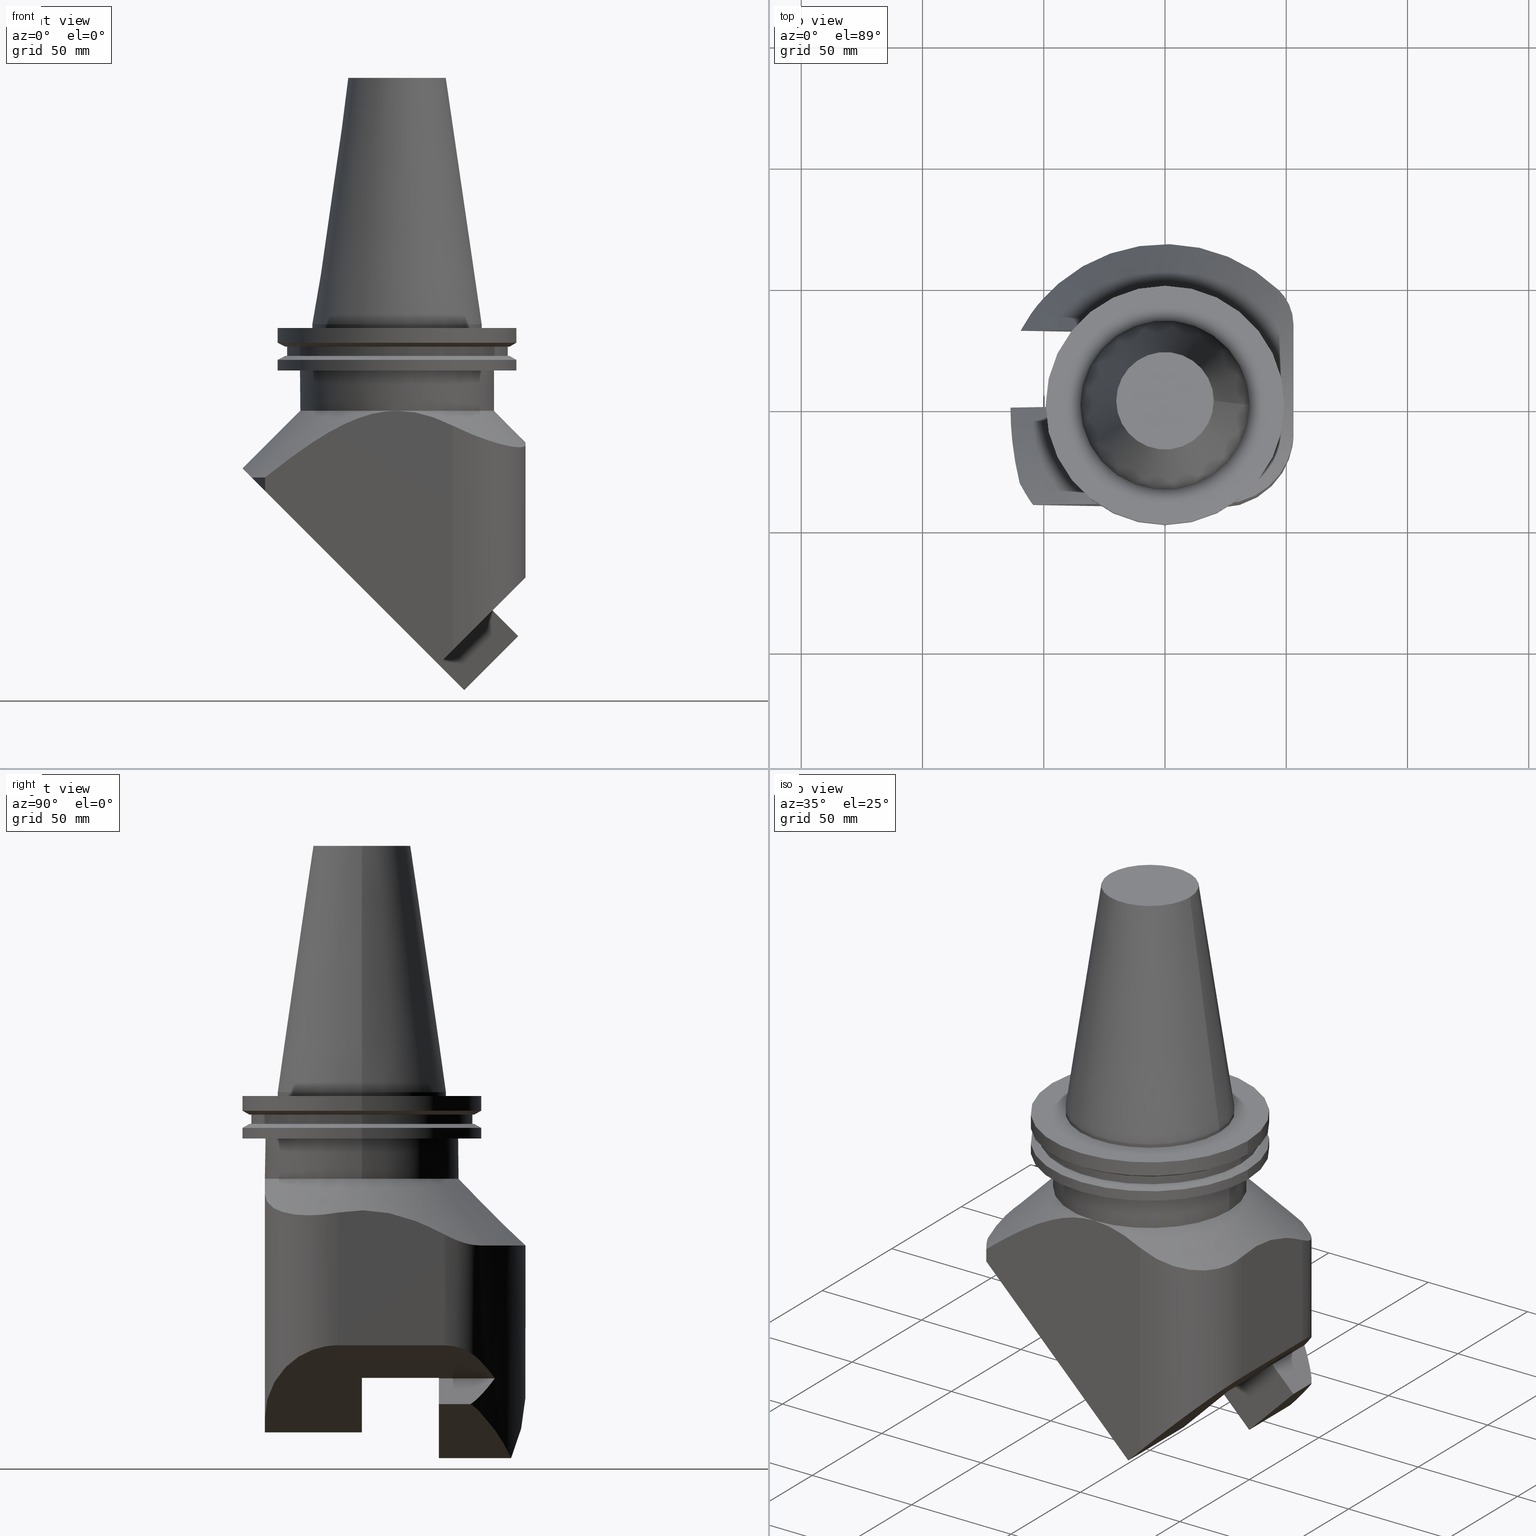
[diagram: canonical four-view strip — front | top / right | iso, engineering-drawing reading convention]
A machine part, canonical four-view strip (front | top / right | iso — engineering-drawing reading convention). The complete STEP part file that produces these views, byte-faithful:
ISO-10303-21;
HEADER;
FILE_DESCRIPTION((''),'1');
FILE_NAME('V:/01_Dxf_Field-HP\X2\FF71FF6FFF8CFF9F5916\X0\2013/BIGKAISER\X2\FF76FF80FF9BFF78FF9E63B28F095206\X0\_BKUS_201803/BCV50Y-45-BH/BCV50Y-45-BH1.250L-5.5.stp','2018-03-14T04:22:24',(''),(''),'Spatial Interop R21 SP3','Kubotek KeyCreator 2011 V10.0.2 (22737)',' ');
FILE_SCHEMA(('automotive_design'));
ENDSEC;
DATA;
#1=MECHANICAL_DESIGN_GEOMETRIC_PRESENTATION_REPRESENTATION(' ',(#10,#11,#12,#13,#14,#15,#16,#17,#18,#19,#20,#21,#22,#23,#24,#25,#26,#27,#28,#29,#30,#31,#32,#33,#34,#35,#36,#37,#38,#39,#40,#41,#42,#43,#44,#45,#46,#47,#48,#49,#50,#51,#52,#53,#54,#55,#56,#57,#58,#59,#60,#61,#62,#63,#64,#65,#66,#67,#68,#69,#70,#71,#72,#73,#74,#75,#76,#77,#78,#79,#80,#81,#82,#83,#84,#85,#86,#87,#88,#89,#90,#91,#92,#93,#94,#95),#6);
#2=PRODUCT_DEFINITION_CONTEXT('',#96,'design');
#3=APPLICATION_PROTOCOL_DEFINITION('INTERNATIONAL STANDARD','automotive_design',1994,#96);
#4=PRODUCT_CATEGORY_RELATIONSHIP('NONE','NONE',#97,#98);
#5=SHAPE_DEFINITION_REPRESENTATION(#99,#100);
#6= (GEOMETRIC_REPRESENTATION_CONTEXT(3)GLOBAL_UNCERTAINTY_ASSIGNED_CONTEXT((#103))GLOBAL_UNIT_ASSIGNED_CONTEXT((#105,#106,#107))REPRESENTATION_CONTEXT('NONE','WORKSPACE'));
#10=STYLED_ITEM('',(#109),#110);
#11=STYLED_ITEM('',(#111,#112),#113);
#12=STYLED_ITEM('',(#114,#115),#116);
#13=STYLED_ITEM('',(#117),#118);
#14=STYLED_ITEM('',(#119),#120);
#15=STYLED_ITEM('',(#121,#122),#123);
#16=STYLED_ITEM('',(#124,#125),#126);
#17=STYLED_ITEM('',(#127),#128);
#18=STYLED_ITEM('',(#129,#130),#131);
#19=STYLED_ITEM('',(#132),#133);
#20=STYLED_ITEM('',(#134),#135);
#21=STYLED_ITEM('',(#136,#137),#138);
#22=STYLED_ITEM('',(#139),#140);
#23=STYLED_ITEM('',(#141,#142),#143);
#24=STYLED_ITEM('',(#144),#145);
#25=STYLED_ITEM('',(#146),#147);
#26=STYLED_ITEM('',(#148,#149),#150);
#27=STYLED_ITEM('',(#151),#152);
#28=STYLED_ITEM('',(#153,#154),#155);
#29=STYLED_ITEM('',(#156),#157);
#30=STYLED_ITEM('',(#158),#159);
#31=STYLED_ITEM('',(#160),#161);
#32=STYLED_ITEM('',(#162,#163),#164);
#33=STYLED_ITEM('',(#165),#166);
#34=STYLED_ITEM('',(#167,#168),#169);
#35=STYLED_ITEM('',(#170),#171);
#36=STYLED_ITEM('',(#172),#173);
#37=STYLED_ITEM('',(#174),#175);
#38=STYLED_ITEM('',(#176,#177),#178);
#39=STYLED_ITEM('',(#179),#180);
#40=STYLED_ITEM('',(#181),#182);
#41=STYLED_ITEM('',(#183,#184),#185);
#42=STYLED_ITEM('',(#186),#187);
#43=STYLED_ITEM('',(#188,#189),#190);
#44=STYLED_ITEM('',(#191),#192);
#45=STYLED_ITEM('',(#193),#194);
#46=STYLED_ITEM('',(#195),#196);
#47=STYLED_ITEM('',(#197),#198);
#48=STYLED_ITEM('',(#199),#200);
#49=STYLED_ITEM('',(#201,#202),#203);
#50=STYLED_ITEM('',(#204,#205),#206);
#51=STYLED_ITEM('',(#207),#208);
#52=STYLED_ITEM('',(#209,#210),#211);
#53=STYLED_ITEM('',(#212),#213);
#54=STYLED_ITEM('',(#214),#215);
#55=STYLED_ITEM('',(#216),#217);
#56=STYLED_ITEM('',(#218),#219);
#57=STYLED_ITEM('',(#220),#221);
#58=STYLED_ITEM('',(#222),#223);
#59=STYLED_ITEM('',(#224),#225);
#60=STYLED_ITEM('',(#226),#227);
#61=STYLED_ITEM('',(#228),#229);
#62=STYLED_ITEM('',(#230,#231),#232);
#63=STYLED_ITEM('',(#233),#234);
#64=STYLED_ITEM('',(#235),#236);
#65=STYLED_ITEM('',(#237,#238),#239);
#66=STYLED_ITEM('',(#240),#241);
#67=STYLED_ITEM('',(#242),#243);
#68=STYLED_ITEM('',(#244),#245);
#69=STYLED_ITEM('',(#246,#247),#248);
#70=STYLED_ITEM('',(#249,#250),#251);
#71=STYLED_ITEM('',(#252),#253);
#72=STYLED_ITEM('',(#254),#255);
#73=STYLED_ITEM('',(#256,#257),#258);
#74=STYLED_ITEM('',(#259),#260);
#75=STYLED_ITEM('',(#261),#262);
#76=STYLED_ITEM('',(#263),#264);
#77=STYLED_ITEM('',(#265),#266);
#78=STYLED_ITEM('',(#267),#268);
#79=STYLED_ITEM('',(#269),#270);
#80=STYLED_ITEM('',(#271,#272),#273);
#81=STYLED_ITEM('',(#274,#275),#276);
#82=STYLED_ITEM('',(#277,#278),#279);
#83=STYLED_ITEM('',(#280),#281);
#84=STYLED_ITEM('',(#282),#283);
#85=STYLED_ITEM('',(#284),#285);
#86=STYLED_ITEM('',(#286,#287),#288);
#87=STYLED_ITEM('',(#289,#290),#291);
#88=STYLED_ITEM('',(#292),#293);
#89=STYLED_ITEM('',(#294),#295);
#90=STYLED_ITEM('',(#296,#297),#298);
#91=STYLED_ITEM('',(#299,#300),#301);
#92=STYLED_ITEM('',(#302),#303);
#93=STYLED_ITEM('',(#304),#305);
#94=STYLED_ITEM('',(#306,#307),#308);
#95=STYLED_ITEM('',(#309),#310);
#96=APPLICATION_CONTEXT(' ');
#97=PRODUCT_CATEGORY('part','NONE');
#98=PRODUCT_RELATED_PRODUCT_CATEGORY('detail',' ',(#311));
#99=PRODUCT_DEFINITION_SHAPE('NONE','NONE',#312);
#100=ADVANCED_BREP_SHAPE_REPRESENTATION('Unnamed[1]',(#308,#313),#6);
#103=UNCERTAINTY_MEASURE_WITH_UNIT(LENGTH_MEASURE(1.0E-006),#105,'','');
#105= (CONVERSION_BASED_UNIT('MILLIMETRE',#316)LENGTH_UNIT()NAMED_UNIT(#319));
#106= (NAMED_UNIT(#321)PLANE_ANGLE_UNIT()SI_UNIT($,.RADIAN.));
#107= (NAMED_UNIT(#321)SOLID_ANGLE_UNIT()SI_UNIT($,.STERADIAN.));
#109=PRESENTATION_STYLE_ASSIGNMENT((#327));
#110=EDGE_CURVE('Unnamed[1]',#328,#329,#330,.T.);
#111=PRESENTATION_STYLE_ASSIGNMENT((#331));
#112=PRESENTATION_STYLE_ASSIGNMENT((#332));
#113=ADVANCED_FACE('Unnamed[1]',(#333,#334),#335,.T.);
#114=PRESENTATION_STYLE_ASSIGNMENT((#336));
#115=PRESENTATION_STYLE_ASSIGNMENT((#337));
#116=ADVANCED_FACE('Unnamed[1]',(#338,#339),#340,.T.);
#117=PRESENTATION_STYLE_ASSIGNMENT((#341));
#118=EDGE_CURVE('Unnamed[1]',#342,#343,#344,.T.);
#119=PRESENTATION_STYLE_ASSIGNMENT((#345));
#120=EDGE_CURVE('Unnamed[1]',#346,#346,#347,.T.);
#121=PRESENTATION_STYLE_ASSIGNMENT((#348));
#122=PRESENTATION_STYLE_ASSIGNMENT((#349));
#123=ADVANCED_FACE('Unnamed[1]',(#350),#351,.T.);
#124=PRESENTATION_STYLE_ASSIGNMENT((#352));
#125=PRESENTATION_STYLE_ASSIGNMENT((#353));
#126=ADVANCED_FACE('Unnamed[1]',(#354),#355,.F.);
#127=PRESENTATION_STYLE_ASSIGNMENT((#356));
#128=EDGE_CURVE('Unnamed[1]',#357,#358,#359,.T.);
#129=PRESENTATION_STYLE_ASSIGNMENT((#360));
#130=PRESENTATION_STYLE_ASSIGNMENT((#361));
#131=ADVANCED_FACE('Unnamed[1]',(#362),#363,.T.);
#132=PRESENTATION_STYLE_ASSIGNMENT((#364));
#133=EDGE_CURVE('Unnamed[1]',#365,#366,#367,.T.);
#134=PRESENTATION_STYLE_ASSIGNMENT((#368));
#135=EDGE_CURVE('Unnamed[1]',#369,#370,#371,.T.);
#136=PRESENTATION_STYLE_ASSIGNMENT((#372));
#137=PRESENTATION_STYLE_ASSIGNMENT((#373));
#138=ADVANCED_FACE('Unnamed[1]',(#374),#375,.T.);
#139=PRESENTATION_STYLE_ASSIGNMENT((#376));
#140=EDGE_CURVE('Unnamed[1]',#377,#357,#378,.T.);
#141=PRESENTATION_STYLE_ASSIGNMENT((#379));
#142=PRESENTATION_STYLE_ASSIGNMENT((#380));
#143=ADVANCED_FACE('Unnamed[1]',(#381,#382),#383,.T.);
#144=PRESENTATION_STYLE_ASSIGNMENT((#384));
#145=EDGE_CURVE('Unnamed[1]',#385,#386,#387,.T.);
#146=PRESENTATION_STYLE_ASSIGNMENT((#388));
#147=EDGE_CURVE('Unnamed[1]',#389,#358,#390,.T.);
#148=PRESENTATION_STYLE_ASSIGNMENT((#391));
#149=PRESENTATION_STYLE_ASSIGNMENT((#392));
#150=ADVANCED_FACE('Unnamed[1]',(#393,#394),#395,.T.);
#151=PRESENTATION_STYLE_ASSIGNMENT((#396));
#152=EDGE_CURVE('Unnamed[1]',#358,#377,#397,.T.);
#153=PRESENTATION_STYLE_ASSIGNMENT((#398));
#154=PRESENTATION_STYLE_ASSIGNMENT((#399));
#155=ADVANCED_FACE('Unnamed[1]',(#400,#401),#402,.T.);
#156=PRESENTATION_STYLE_ASSIGNMENT((#403));
#157=EDGE_CURVE('Unnamed[1]',#404,#405,#406,.T.);
#158=PRESENTATION_STYLE_ASSIGNMENT((#407));
#159=EDGE_CURVE('Unnamed[1]',#408,#389,#409,.T.);
#160=PRESENTATION_STYLE_ASSIGNMENT((#410));
#161=EDGE_CURVE('Unnamed[1]',#404,#411,#412,.T.);
#162=PRESENTATION_STYLE_ASSIGNMENT((#413));
#163=PRESENTATION_STYLE_ASSIGNMENT((#414));
#164=ADVANCED_FACE('Unnamed[1]',(#415),#416,.F.);
#165=PRESENTATION_STYLE_ASSIGNMENT((#417));
#166=EDGE_CURVE('Unnamed[1]',#342,#418,#419,.T.);
#167=PRESENTATION_STYLE_ASSIGNMENT((#420));
#168=PRESENTATION_STYLE_ASSIGNMENT((#421));
#169=ADVANCED_FACE('Unnamed[1]',(#422,#423),#424,.T.);
#170=PRESENTATION_STYLE_ASSIGNMENT((#425));
#171=EDGE_CURVE('Unnamed[1]',#366,#426,#427,.T.);
#172=PRESENTATION_STYLE_ASSIGNMENT((#428));
#173=EDGE_CURVE('Unnamed[1]',#429,#385,#430,.T.);
#174=PRESENTATION_STYLE_ASSIGNMENT((#431));
#175=EDGE_CURVE('Unnamed[1]',#432,#377,#433,.T.);
#176=PRESENTATION_STYLE_ASSIGNMENT((#434));
#177=PRESENTATION_STYLE_ASSIGNMENT((#435));
#178=ADVANCED_FACE('Unnamed[1]',(#436),#437,.F.);
#179=PRESENTATION_STYLE_ASSIGNMENT((#438));
#180=EDGE_CURVE('Unnamed[1]',#439,#439,#440,.T.);
#181=PRESENTATION_STYLE_ASSIGNMENT((#441));
#182=EDGE_CURVE('Unnamed[1]',#442,#442,#443,.T.);
#183=PRESENTATION_STYLE_ASSIGNMENT((#444));
#184=PRESENTATION_STYLE_ASSIGNMENT((#445));
#185=ADVANCED_FACE('Unnamed[1]',(#446),#447,.T.);
#186=PRESENTATION_STYLE_ASSIGNMENT((#448));
#187=EDGE_CURVE('Unnamed[1]',#366,#342,#449,.T.);
#188=PRESENTATION_STYLE_ASSIGNMENT((#450));
#189=PRESENTATION_STYLE_ASSIGNMENT((#451));
#190=ADVANCED_FACE('Unnamed[1]',(#452),#453,.F.);
#191=PRESENTATION_STYLE_ASSIGNMENT((#454));
#192=EDGE_CURVE('Unnamed[1]',#455,#369,#456,.T.);
#193=PRESENTATION_STYLE_ASSIGNMENT((#457));
#194=EDGE_CURVE('Unnamed[1]',#458,#455,#459,.T.);
#195=PRESENTATION_STYLE_ASSIGNMENT((#460));
#196=EDGE_CURVE('Unnamed[1]',#461,#461,#462,.T.);
#197=PRESENTATION_STYLE_ASSIGNMENT((#463));
#198=EDGE_CURVE('Unnamed[1]',#464,#464,#465,.T.);
#199=PRESENTATION_STYLE_ASSIGNMENT((#466));
#200=EDGE_CURVE('Unnamed[1]',#426,#467,#468,.T.);
#201=PRESENTATION_STYLE_ASSIGNMENT((#469));
#202=PRESENTATION_STYLE_ASSIGNMENT((#470));
#203=ADVANCED_FACE('Unnamed[1]',(#471,#472),#473,.T.);
#204=PRESENTATION_STYLE_ASSIGNMENT((#474));
#205=PRESENTATION_STYLE_ASSIGNMENT((#475));
#206=ADVANCED_FACE('Unnamed[1]',(#476),#477,.F.);
#207=PRESENTATION_STYLE_ASSIGNMENT((#478));
#208=EDGE_CURVE('Unnamed[1]',#479,#404,#480,.T.);
#209=PRESENTATION_STYLE_ASSIGNMENT((#481));
#210=PRESENTATION_STYLE_ASSIGNMENT((#482));
#211=ADVANCED_FACE('Unnamed[1]',(#483),#484,.T.);
#212=PRESENTATION_STYLE_ASSIGNMENT((#485));
#213=EDGE_CURVE('Unnamed[1]',#429,#329,#486,.T.);
#214=PRESENTATION_STYLE_ASSIGNMENT((#487));
#215=EDGE_CURVE('Unnamed[1]',#488,#488,#489,.T.);
#216=PRESENTATION_STYLE_ASSIGNMENT((#490));
#217=EDGE_CURVE('Unnamed[1]',#411,#411,#491,.T.);
#218=PRESENTATION_STYLE_ASSIGNMENT((#492));
#219=EDGE_CURVE('Unnamed[1]',#493,#493,#494,.T.);
#220=PRESENTATION_STYLE_ASSIGNMENT((#495));
#221=EDGE_CURVE('Unnamed[1]',#405,#479,#496,.T.);
#222=PRESENTATION_STYLE_ASSIGNMENT((#497));
#223=EDGE_CURVE('Unnamed[1]',#498,#343,#499,.T.);
#224=PRESENTATION_STYLE_ASSIGNMENT((#500));
#225=EDGE_CURVE('Unnamed[1]',#501,#501,#502,.T.);
#226=PRESENTATION_STYLE_ASSIGNMENT((#503));
#227=EDGE_CURVE('Unnamed[1]',#458,#369,#504,.T.);
#228=PRESENTATION_STYLE_ASSIGNMENT((#505));
#229=EDGE_CURVE('Unnamed[1]',#506,#506,#507,.T.);
#230=PRESENTATION_STYLE_ASSIGNMENT((#508));
#231=PRESENTATION_STYLE_ASSIGNMENT((#509));
#232=ADVANCED_FACE('Unnamed[1]',(#510,#511),#512,.T.);
#233=PRESENTATION_STYLE_ASSIGNMENT((#513));
#234=EDGE_CURVE('Unnamed[1]',#329,#386,#514,.T.);
#235=PRESENTATION_STYLE_ASSIGNMENT((#515));
#236=EDGE_CURVE('Unnamed[1]',#370,#516,#517,.T.);
#237=PRESENTATION_STYLE_ASSIGNMENT((#518));
#238=PRESENTATION_STYLE_ASSIGNMENT((#519));
#239=ADVANCED_FACE('Unnamed[1]',(#520,#521),#522,.T.);
#240=PRESENTATION_STYLE_ASSIGNMENT((#523));
#241=EDGE_CURVE('Unnamed[1]',#479,#426,#524,.T.);
#242=PRESENTATION_STYLE_ASSIGNMENT((#525));
#243=EDGE_CURVE('Unnamed[1]',#467,#328,#526,.T.);
#244=PRESENTATION_STYLE_ASSIGNMENT((#527));
#245=EDGE_CURVE('Unnamed[1]',#528,#528,#529,.T.);
#246=PRESENTATION_STYLE_ASSIGNMENT((#530));
#247=PRESENTATION_STYLE_ASSIGNMENT((#531));
#248=ADVANCED_FACE('Unnamed[1]',(#532),#533,.F.);
#249=PRESENTATION_STYLE_ASSIGNMENT((#534));
#250=PRESENTATION_STYLE_ASSIGNMENT((#535));
#251=ADVANCED_FACE('Unnamed[1]',(#536),#537,.T.);
#252=PRESENTATION_STYLE_ASSIGNMENT((#538));
#253=EDGE_CURVE('Unnamed[1]',#418,#365,#539,.T.);
#254=PRESENTATION_STYLE_ASSIGNMENT((#540));
#255=EDGE_CURVE('Unnamed[1]',#408,#516,#541,.T.);
#256=PRESENTATION_STYLE_ASSIGNMENT((#542));
#257=PRESENTATION_STYLE_ASSIGNMENT((#543));
#258=ADVANCED_FACE('Unnamed[1]',(#544,#545),#546,.T.);
#259=PRESENTATION_STYLE_ASSIGNMENT((#547));
#260=EDGE_CURVE('Unnamed[1]',#548,#548,#549,.T.);
#261=PRESENTATION_STYLE_ASSIGNMENT((#550));
#262=EDGE_CURVE('Unnamed[1]',#551,#432,#552,.T.);
#263=PRESENTATION_STYLE_ASSIGNMENT((#553));
#264=EDGE_CURVE('Unnamed[1]',#365,#405,#554,.T.);
#265=PRESENTATION_STYLE_ASSIGNMENT((#555));
#266=EDGE_CURVE('Unnamed[1]',#357,#458,#556,.T.);
#267=PRESENTATION_STYLE_ASSIGNMENT((#557));
#268=EDGE_CURVE('Unnamed[1]',#343,#551,#558,.T.);
#269=PRESENTATION_STYLE_ASSIGNMENT((#559));
#270=EDGE_CURVE('Unnamed[1]',#386,#516,#560,.T.);
#271=PRESENTATION_STYLE_ASSIGNMENT((#561));
#272=PRESENTATION_STYLE_ASSIGNMENT((#562));
#273=ADVANCED_FACE('Unnamed[1]',(#563,#564),#565,.T.);
#274=PRESENTATION_STYLE_ASSIGNMENT((#566));
#275=PRESENTATION_STYLE_ASSIGNMENT((#567));
#276=ADVANCED_FACE('Unnamed[1]',(#568),#569,.F.);
#277=PRESENTATION_STYLE_ASSIGNMENT((#570));
#278=PRESENTATION_STYLE_ASSIGNMENT((#571));
#279=ADVANCED_FACE('Unnamed[1]',(#572),#573,.F.);
#280=PRESENTATION_STYLE_ASSIGNMENT((#574));
#281=EDGE_CURVE('Unnamed[1]',#370,#498,#575,.T.);
#282=PRESENTATION_STYLE_ASSIGNMENT((#576));
#283=EDGE_CURVE('Unnamed[1]',#432,#455,#577,.T.);
#284=PRESENTATION_STYLE_ASSIGNMENT((#578));
#285=EDGE_CURVE('Unnamed[1]',#579,#579,#580,.T.);
#286=PRESENTATION_STYLE_ASSIGNMENT((#581));
#287=PRESENTATION_STYLE_ASSIGNMENT((#582));
#288=ADVANCED_FACE('Unnamed[1]',(#583),#584,.F.);
#289=PRESENTATION_STYLE_ASSIGNMENT((#585));
#290=PRESENTATION_STYLE_ASSIGNMENT((#586));
#291=ADVANCED_FACE('Unnamed[1]',(#587),#588,.T.);
#292=PRESENTATION_STYLE_ASSIGNMENT((#589));
#293=EDGE_CURVE('Unnamed[1]',#467,#429,#590,.T.);
#294=PRESENTATION_STYLE_ASSIGNMENT((#591));
#295=EDGE_CURVE('Unnamed[1]',#551,#389,#592,.T.);
#296=PRESENTATION_STYLE_ASSIGNMENT((#593));
#297=PRESENTATION_STYLE_ASSIGNMENT((#594));
#298=ADVANCED_FACE('Unnamed[1]',(#595,#596),#597,.T.);
#299=PRESENTATION_STYLE_ASSIGNMENT((#598));
#300=PRESENTATION_STYLE_ASSIGNMENT((#599));
#301=ADVANCED_FACE('Unnamed[1]',(#600),#601,.T.);
#302=PRESENTATION_STYLE_ASSIGNMENT((#602));
#303=EDGE_CURVE('Unnamed[1]',#385,#408,#603,.T.);
#304=PRESENTATION_STYLE_ASSIGNMENT((#604));
#305=EDGE_CURVE('Unnamed[1]',#498,#418,#605,.T.);
#306=PRESENTATION_STYLE_ASSIGNMENT((#606));
#307=PRESENTATION_STYLE_ASSIGNMENT((#607));
#308=MANIFOLD_SOLID_BREP('Unnamed[1]',#608);
#309=PRESENTATION_STYLE_ASSIGNMENT((#609));
#310=EDGE_CURVE('Unnamed[1]',#411,#328,#610,.T.);
#311=PRODUCT('Unnamed[1]','Unnamed[1]','PART-Unnamed[1]-DESC',(#611));
#312=PRODUCT_DEFINITION('NONE','NONE',#612,#2);
#313=AXIS2_PLACEMENT_3D('',#613,#614,#615);
#316=LENGTH_MEASURE_WITH_UNIT(LENGTH_MEASURE(1.0),#616);
#319=DIMENSIONAL_EXPONENTS(1.0,0.0,0.0,0.0,0.0,0.0,0.0);
#321=DIMENSIONAL_EXPONENTS(0.0,0.0,0.0,0.0,0.0,0.0,0.0);
#327=CURVE_STYLE('',#617,POSITIVE_LENGTH_MEASURE(1000.0),#618);
#328=VERTEX_POINT('',#619);
#329=VERTEX_POINT('',#620);
#330=B_SPLINE_CURVE_WITH_KNOTS('',3,(#621,#622,#623,#624,#625,#626,#627,#628,#629,#630,#631,#632,#633,#634,#635,#636,#637,#638,#639,#640,#641,#642,#643,#644,#645,#646),.UNSPECIFIED.,.F.,.F.,(4,2,2,2,2,2,2,2,2,2,2,2,4),(9.54781943589006,14.3217291538351,19.0956388717801,23.4031082217474,27.7105775717147,32.0180469216819,36.3255162716492,40.461743414371,44.5979705570927,48.7341976998145,52.8704248425363,57.122659954357,61.3748950661777),.UNSPECIFIED.);
#331=SURFACE_STYLE_USAGE(.BOTH.,#647);
#332=CURVE_STYLE('',#648,POSITIVE_LENGTH_MEASURE(1000.0),#649);
#333=FACE_OUTER_BOUND('',#650,.T.);
#334=FACE_BOUND('',#651,.T.);
#335=PLANE('',#652);
#336=SURFACE_STYLE_USAGE(.BOTH.,#653);
#337=CURVE_STYLE('',#654,POSITIVE_LENGTH_MEASURE(1000.0),#655);
#338=FACE_OUTER_BOUND('',#656,.T.);
#339=FACE_BOUND('',#657,.T.);
#340=PLANE('',#658);
#341=CURVE_STYLE('',#659,POSITIVE_LENGTH_MEASURE(1000.0),#660);
#342=VERTEX_POINT('',#661);
#343=VERTEX_POINT('',#662);
#344=LINE('',#663,#664);
#345=CURVE_STYLE('',#665,POSITIVE_LENGTH_MEASURE(1000.0),#666);
#346=VERTEX_POINT('',#667);
#347=CIRCLE('',#668,49.2125);
#348=SURFACE_STYLE_USAGE(.BOTH.,#669);
#349=CURVE_STYLE('',#670,POSITIVE_LENGTH_MEASURE(1000.0),#671);
#350=FACE_OUTER_BOUND('',#672,.T.);
#351=CYLINDRICAL_SURFACE('',#673,67.5000000000011);
#352=SURFACE_STYLE_USAGE(.BOTH.,#674);
#353=CURVE_STYLE('',#675,POSITIVE_LENGTH_MEASURE(1000.0),#676);
#354=FACE_OUTER_BOUND('',#677,.T.);
#355=PLANE('',#678);
#356=CURVE_STYLE('',#679,POSITIVE_LENGTH_MEASURE(1000.0),#680);
#357=VERTEX_POINT('',#681);
#358=VERTEX_POINT('',#682);
#359=LINE('',#683,#684);
#360=SURFACE_STYLE_USAGE(.BOTH.,#685);
#361=CURVE_STYLE('',#686,POSITIVE_LENGTH_MEASURE(1000.0),#687);
#362=FACE_OUTER_BOUND('',#688,.T.);
#363=CYLINDRICAL_SURFACE('',#689,19.9999999999986);
#364=CURVE_STYLE('',#690,POSITIVE_LENGTH_MEASURE(1000.0),#691);
#365=VERTEX_POINT('',#692);
#366=VERTEX_POINT('',#693);
#367=LINE('',#694,#695);
#368=CURVE_STYLE('',#696,POSITIVE_LENGTH_MEASURE(1000.0),#697);
#369=VERTEX_POINT('',#698);
#370=VERTEX_POINT('',#699);
#371=LINE('',#700,#701);
#372=SURFACE_STYLE_USAGE(.BOTH.,#702);
#373=CURVE_STYLE('',#703,POSITIVE_LENGTH_MEASURE(1000.0),#704);
#374=FACE_OUTER_BOUND('',#705,.T.);
#375=CYLINDRICAL_SURFACE('',#706,30.0000000000011);
#376=CURVE_STYLE('',#707,POSITIVE_LENGTH_MEASURE(1000.0),#708);
#377=VERTEX_POINT('',#709);
#378=ELLIPSE('',#710,28.2842712474594,19.9999999999986);
#379=SURFACE_STYLE_USAGE(.BOTH.,#711);
#380=CURVE_STYLE('',#712,POSITIVE_LENGTH_MEASURE(1000.0),#713);
#381=FACE_BOUND('',#714,.T.);
#382=FACE_BOUND('',#715,.T.);
#383=CYLINDRICAL_SURFACE('',#716,45.645);
#384=CURVE_STYLE('',#717,POSITIVE_LENGTH_MEASURE(1000.0),#718);
#385=VERTEX_POINT('',#719);
#386=VERTEX_POINT('',#720);
#387=LINE('',#721,#722);
#388=CURVE_STYLE('',#723,POSITIVE_LENGTH_MEASURE(1000.0),#724);
#389=VERTEX_POINT('',#725);
#390=ELLIPSE('',#726,95.4594154601876,67.5000000000011);
#391=SURFACE_STYLE_USAGE(.BOTH.,#727);
#392=CURVE_STYLE('',#728,POSITIVE_LENGTH_MEASURE(1000.0),#729);
#393=FACE_BOUND('',#730,.T.);
#394=FACE_OUTER_BOUND('',#731,.T.);
#395=PLANE('',#732);
#396=CURVE_STYLE('',#733,POSITIVE_LENGTH_MEASURE(1000.0),#734);
#397=ELLIPSE('',#735,28.2842712474606,19.9999999999986);
#398=SURFACE_STYLE_USAGE(.BOTH.,#736);
#399=CURVE_STYLE('',#737,POSITIVE_LENGTH_MEASURE(1000.0),#738);
#400=FACE_BOUND('',#739,.T.);
#401=FACE_BOUND('',#740,.T.);
#402=CONICAL_SURFACE('',#741,47.821518775,1.04719755103024);
#403=CURVE_STYLE('',#742,POSITIVE_LENGTH_MEASURE(1000.0),#743);
#404=VERTEX_POINT('',#744);
#405=VERTEX_POINT('',#745);
#406=CIRCLE('',#746,67.5000000000005);
#407=CURVE_STYLE('',#747,POSITIVE_LENGTH_MEASURE(1000.0),#748);
#408=VERTEX_POINT('',#749);
#409=ELLIPSE('',#750,95.4594154601979,67.5000000000011);
#410=CURVE_STYLE('',#751,POSITIVE_LENGTH_MEASURE(1000.0),#752);
#411=VERTEX_POINT('',#753);
#412=(B_SPLINE_CURVE(2,(#755,#756,#757,#758,#759),.UNSPECIFIED.,.F.,.F.)B_SPLINE_CURVE_WITH_KNOTS((3,2,3),(0.0,61.7520881841172,123.504176368234),.UNSPECIFIED.)RATIONAL_B_SPLINE_CURVE((1.0,1.15920231193658,1.0,1.15920231193658,1.0))BOUNDED_CURVE()REPRESENTATION_ITEM('')GEOMETRIC_REPRESENTATION_ITEM()CURVE());
#413=SURFACE_STYLE_USAGE(.BOTH.,#766);
#414=CURVE_STYLE('',#767,POSITIVE_LENGTH_MEASURE(1000.0),#768);
#415=FACE_OUTER_BOUND('',#769,.T.);
#416=PLANE('',#770);
#417=CURVE_STYLE('',#771,POSITIVE_LENGTH_MEASURE(1000.0),#772);
#418=VERTEX_POINT('',#773);
#419=LINE('',#774,#775);
#420=SURFACE_STYLE_USAGE(.BOTH.,#776);
#421=CURVE_STYLE('',#777,POSITIVE_LENGTH_MEASURE(1000.0),#778);
#422=FACE_BOUND('',#779,.T.);
#423=FACE_BOUND('',#780,.T.);
#424=CONICAL_SURFACE('',#781,27.5166666648608,0.144812498273746);
#425=CURVE_STYLE('',#782,POSITIVE_LENGTH_MEASURE(1000.0),#783);
#426=VERTEX_POINT('',#784);
#427=LINE('',#785,#786);
#428=CURVE_STYLE('',#787,POSITIVE_LENGTH_MEASURE(1000.0),#788);
#429=VERTEX_POINT('',#789);
#430=LINE('',#790,#791);
#431=CURVE_STYLE('',#792,POSITIVE_LENGTH_MEASURE(1000.0),#793);
#432=VERTEX_POINT('',#794);
#433=LINE('',#795,#796);
#434=SURFACE_STYLE_USAGE(.BOTH.,#797);
#435=CURVE_STYLE('',#798,POSITIVE_LENGTH_MEASURE(1000.0),#799);
#436=FACE_OUTER_BOUND('',#800,.T.);
#437=PLANE('',#801);
#438=CURVE_STYLE('',#802,POSITIVE_LENGTH_MEASURE(1000.0),#803);
#439=VERTEX_POINT('',#804);
#440=CIRCLE('',#805,45.645);
#441=CURVE_STYLE('',#806,POSITIVE_LENGTH_MEASURE(1000.0),#807);
#442=VERTEX_POINT('',#808);
#443=CIRCLE('',#809,49.2125);
#444=SURFACE_STYLE_USAGE(.BOTH.,#810);
#445=CURVE_STYLE('',#811,POSITIVE_LENGTH_MEASURE(1000.0),#812);
#446=FACE_OUTER_BOUND('',#813,.T.);
#447=CYLINDRICAL_SURFACE('',#814,19.9999999999986);
#448=CURVE_STYLE('',#815,POSITIVE_LENGTH_MEASURE(1000.0),#816);
#449=LINE('',#817,#818);
#450=SURFACE_STYLE_USAGE(.BOTH.,#819);
#451=CURVE_STYLE('',#820,POSITIVE_LENGTH_MEASURE(1000.0),#821);
#452=FACE_OUTER_BOUND('',#822,.T.);
#453=PLANE('',#823);
#454=CURVE_STYLE('',#824,POSITIVE_LENGTH_MEASURE(1000.0),#825);
#455=VERTEX_POINT('',#826);
#456=LINE('',#827,#828);
#457=CURVE_STYLE('',#829,POSITIVE_LENGTH_MEASURE(1000.0),#830);
#458=VERTEX_POINT('',#831);
#459=LINE('',#832,#833);
#460=CURVE_STYLE('',#834,POSITIVE_LENGTH_MEASURE(1000.0),#835);
#461=VERTEX_POINT('',#836);
#462=CIRCLE('',#837,46.43053755);
#463=CURVE_STYLE('',#838,POSITIVE_LENGTH_MEASURE(1000.0),#839);
#464=VERTEX_POINT('',#840);
#465=CIRCLE('',#841,20.1083333297217);
#466=CURVE_STYLE('',#842,POSITIVE_LENGTH_MEASURE(1000.0),#843);
#467=VERTEX_POINT('',#844);
#468=LINE('',#845,#846);
#469=SURFACE_STYLE_USAGE(.BOTH.,#847);
#470=CURVE_STYLE('',#848,POSITIVE_LENGTH_MEASURE(1000.0),#849);
#471=FACE_BOUND('',#850,.T.);
#472=FACE_BOUND('',#851,.T.);
#473=CONICAL_SURFACE('',#852,47.821518775,1.04719755103023);
#474=SURFACE_STYLE_USAGE(.BOTH.,#853);
#475=CURVE_STYLE('',#854,POSITIVE_LENGTH_MEASURE(1000.0),#855);
#476=FACE_OUTER_BOUND('',#856,.T.);
#477=PLANE('',#857);
#478=CURVE_STYLE('',#858,POSITIVE_LENGTH_MEASURE(1000.0),#859);
#479=VERTEX_POINT('',#860);
#480=LINE('',#861,#862);
#481=SURFACE_STYLE_USAGE(.BOTH.,#863);
#482=CURVE_STYLE('',#864,POSITIVE_LENGTH_MEASURE(1000.0),#865);
#483=FACE_OUTER_BOUND('',#866,.T.);
#484=PLANE('',#867);
#485=CURVE_STYLE('',#868,POSITIVE_LENGTH_MEASURE(1000.0),#869);
#486=LINE('',#870,#871);
#487=CURVE_STYLE('',#872,POSITIVE_LENGTH_MEASURE(1000.0),#873);
#488=VERTEX_POINT('',#874);
#489=CIRCLE('',#875,46.43053755);
#490=CURVE_STYLE('',#876,POSITIVE_LENGTH_MEASURE(1000.0),#877);
#491=CIRCLE('',#878,39.9999999999994);
#492=CURVE_STYLE('',#879,POSITIVE_LENGTH_MEASURE(1000.0),#880);
#493=VERTEX_POINT('',#881);
#494=CIRCLE('',#882,49.2125);
#495=CURVE_STYLE('',#883,POSITIVE_LENGTH_MEASURE(1000.0),#884);
#496=ELLIPSE('',#885,95.4594154601864,67.5000000000011);
#497=CURVE_STYLE('',#886,POSITIVE_LENGTH_MEASURE(1000.0),#887);
#498=VERTEX_POINT('',#888);
#499=LINE('',#889,#890);
#500=CURVE_STYLE('',#891,POSITIVE_LENGTH_MEASURE(1000.0),#892);
#501=VERTEX_POINT('',#893);
#502=CIRCLE('',#894,34.925);
#503=CURVE_STYLE('',#895,POSITIVE_LENGTH_MEASURE(1000.0),#896);
#504=ELLIPSE('',#897,95.4594154601864,67.5000000000011);
#505=CURVE_STYLE('',#898,POSITIVE_LENGTH_MEASURE(1000.0),#899);
#506=VERTEX_POINT('',#900);
#507=CIRCLE('',#901,49.2125);
#508=SURFACE_STYLE_USAGE(.BOTH.,#902);
#509=CURVE_STYLE('',#903,POSITIVE_LENGTH_MEASURE(1000.0),#904);
#510=FACE_BOUND('',#905,.T.);
#511=FACE_BOUND('',#906,.T.);
#512=CYLINDRICAL_SURFACE('',#907,34.925);
#513=CURVE_STYLE('',#908,POSITIVE_LENGTH_MEASURE(1000.0),#909);
#514=(B_SPLINE_CURVE(2,(#911,#912,#913),.UNSPECIFIED.,.F.,.F.)B_SPLINE_CURVE_WITH_KNOTS((3,3),(0.0,88.4872872225271),.UNSPECIFIED.)RATIONAL_B_SPLINE_CURVE((1.0,1.27358490566046,1.0))BOUNDED_CURVE()REPRESENTATION_ITEM('')GEOMETRIC_REPRESENTATION_ITEM()CURVE());
#515=CURVE_STYLE('',#920,POSITIVE_LENGTH_MEASURE(1000.0),#921);
#516=VERTEX_POINT('',#922);
#517=CIRCLE('',#923,67.5000000000005);
#518=SURFACE_STYLE_USAGE(.BOTH.,#924);
#519=CURVE_STYLE('',#925,POSITIVE_LENGTH_MEASURE(1000.0),#926);
#520=FACE_OUTER_BOUND('',#927,.T.);
#521=FACE_BOUND('',#928,.T.);
#522=PLANE('',#929);
#523=CURVE_STYLE('',#930,POSITIVE_LENGTH_MEASURE(1000.0),#931);
#524=LINE('',#932,#933);
#525=CURVE_STYLE('',#934,POSITIVE_LENGTH_MEASURE(1000.0),#935);
#526=LINE('',#936,#937);
#527=CURVE_STYLE('',#938,POSITIVE_LENGTH_MEASURE(1000.0),#939);
#528=VERTEX_POINT('',#940);
#529=CIRCLE('',#941,45.645);
#530=SURFACE_STYLE_USAGE(.BOTH.,#942);
#531=CURVE_STYLE('',#943,POSITIVE_LENGTH_MEASURE(1000.0),#944);
#532=FACE_OUTER_BOUND('',#945,.T.);
#533=PLANE('',#946);
#534=SURFACE_STYLE_USAGE(.BOTH.,#947);
#535=CURVE_STYLE('',#948,POSITIVE_LENGTH_MEASURE(1000.0),#949);
#536=FACE_OUTER_BOUND('',#950,.T.);
#537=CYLINDRICAL_SURFACE('',#951,67.5000000000011);
#538=CURVE_STYLE('',#952,POSITIVE_LENGTH_MEASURE(1000.0),#953);
#539=LINE('',#954,#955);
#540=CURVE_STYLE('',#956,POSITIVE_LENGTH_MEASURE(1000.0),#957);
#541=LINE('',#958,#959);
#542=SURFACE_STYLE_USAGE(.BOTH.,#960);
#543=CURVE_STYLE('',#961,POSITIVE_LENGTH_MEASURE(1000.0),#962);
#544=FACE_BOUND('',#963,.T.);
#545=FACE_BOUND('',#964,.T.);
#546=CYLINDRICAL_SURFACE('',#965,49.2125);
#547=CURVE_STYLE('',#966,POSITIVE_LENGTH_MEASURE(1000.0),#967);
#548=VERTEX_POINT('',#968);
#549=CIRCLE('',#969,34.925);
#550=CURVE_STYLE('',#970,POSITIVE_LENGTH_MEASURE(1000.0),#971);
#551=VERTEX_POINT('',#972);
#552=LINE('',#973,#974);
#553=CURVE_STYLE('',#975,POSITIVE_LENGTH_MEASURE(1000.0),#976);
#554=B_SPLINE_CURVE_WITH_KNOTS('',2,(#977,#978,#979,#980,#981),.UNSPECIFIED.,.F.,.F.,(3,2,3),(0.0,31.5550764550612,63.1101529101225),.UNSPECIFIED.);
#555=CURVE_STYLE('',#982,POSITIVE_LENGTH_MEASURE(1000.0),#983);
#556=ELLIPSE('',#984,95.4594154601836,67.5000000000011);
#557=CURVE_STYLE('',#985,POSITIVE_LENGTH_MEASURE(1000.0),#986);
#558=LINE('',#987,#988);
#559=CURVE_STYLE('',#989,POSITIVE_LENGTH_MEASURE(1000.0),#990);
#560=B_SPLINE_CURVE_WITH_KNOTS('',3,(#991,#992,#993,#994,#995,#996,#997,#998,#999,#1000,#1001,#1002,#1003,#1004,#1005,#1006,#1007,#1008),.UNSPECIFIED.,.F.,.F.,(4,2,2,2,2,2,2,2,4),(33.8615846986564,36.6262170531515,39.3908494076466,42.1554817621417,44.4878852802522,46.8202887983627,49.1526923164732,51.4850958345838,53.8174993526943),.UNSPECIFIED.);
#561=SURFACE_STYLE_USAGE(.BOTH.,#1009);
#562=CURVE_STYLE('',#1010,POSITIVE_LENGTH_MEASURE(1000.0),#1011);
#563=FACE_BOUND('',#1012,.T.);
#564=FACE_BOUND('',#1013,.T.);
#565=CYLINDRICAL_SURFACE('',#1014,39.9999999999994);
#566=SURFACE_STYLE_USAGE(.BOTH.,#1015);
#567=CURVE_STYLE('',#1016,POSITIVE_LENGTH_MEASURE(1000.0),#1017);
#568=FACE_OUTER_BOUND('',#1018,.T.);
#569=PLANE('',#1019);
#570=SURFACE_STYLE_USAGE(.BOTH.,#1020);
#571=CURVE_STYLE('',#1021,POSITIVE_LENGTH_MEASURE(1000.0),#1022);
#572=FACE_OUTER_BOUND('',#1023,.T.);
#573=PLANE('',#1024);
#574=CURVE_STYLE('',#1025,POSITIVE_LENGTH_MEASURE(1000.0),#1026);
#575=(B_SPLINE_CURVE(2,(#1028,#1029,#1030),.UNSPECIFIED.,.F.,.F.)B_SPLINE_CURVE_WITH_KNOTS((3,3),(0.0,44.7367097655796),.UNSPECIFIED.)RATIONAL_B_SPLINE_CURVE((1.0,1.05847940210861,1.0))BOUNDED_CURVE()REPRESENTATION_ITEM('')GEOMETRIC_REPRESENTATION_ITEM()CURVE());
#576=CURVE_STYLE('',#1037,POSITIVE_LENGTH_MEASURE(1000.0),#1038);
#577=LINE('',#1039,#1040);
#578=CURVE_STYLE('',#1041,POSITIVE_LENGTH_MEASURE(1000.0),#1042);
#579=VERTEX_POINT('',#1043);
#580=CIRCLE('',#1044,39.9999999999994);
#581=SURFACE_STYLE_USAGE(.BOTH.,#1045);
#582=CURVE_STYLE('',#1046,POSITIVE_LENGTH_MEASURE(1000.0),#1047);
#583=FACE_OUTER_BOUND('',#1048,.T.);
#584=PLANE('',#1049);
#585=SURFACE_STYLE_USAGE(.BOTH.,#1050);
#586=CURVE_STYLE('',#1051,POSITIVE_LENGTH_MEASURE(1000.0),#1052);
#587=FACE_OUTER_BOUND('',#1053,.T.);
#588=CONICAL_SURFACE('',#1054,53.75,0.785398163397432);
#589=CURVE_STYLE('',#1055,POSITIVE_LENGTH_MEASURE(1000.0),#1056);
#590=ELLIPSE('',#1057,42.4264068711999,30.0000000000011);
#591=CURVE_STYLE('',#1058,POSITIVE_LENGTH_MEASURE(1000.0),#1059);
#592=LINE('',#1060,#1061);
#593=SURFACE_STYLE_USAGE(.BOTH.,#1062);
#594=CURVE_STYLE('',#1063,POSITIVE_LENGTH_MEASURE(1000.0),#1064);
#595=FACE_BOUND('',#1065,.T.);
#596=FACE_BOUND('',#1066,.T.);
#597=CYLINDRICAL_SURFACE('',#1067,49.2125);
#598=SURFACE_STYLE_USAGE(.BOTH.,#1068);
#599=CURVE_STYLE('',#1069,POSITIVE_LENGTH_MEASURE(1000.0),#1070);
#600=FACE_OUTER_BOUND('',#1071,.T.);
#601=PLANE('',#1072);
#602=CURVE_STYLE('',#1073,POSITIVE_LENGTH_MEASURE(1000.0),#1074);
#603=ELLIPSE('',#1075,28.2842712474637,19.9999999999986);
#604=CURVE_STYLE('',#1076,POSITIVE_LENGTH_MEASURE(1000.0),#1077);
#605=B_SPLINE_CURVE_WITH_KNOTS('',2,(#1078,#1079,#1080),.UNSPECIFIED.,.F.,.F.,(3,3),(0.0,151.051518331665),.UNSPECIFIED.);
#606=SURFACE_STYLE_USAGE(.BOTH.,#1081);
#607=CURVE_STYLE('',#1082,POSITIVE_LENGTH_MEASURE(1000.0),#1083);
#608=CLOSED_SHELL('',(#178,#288,#211,#276,#164,#279,#248,#138,#190,#206,#126,#185,#131,#251,#123,#301,#169,#232,#113,#258,#155,#150,#143,#116,#203,#298,#239,#273,#291));
#609=CURVE_STYLE('',#1084,POSITIVE_LENGTH_MEASURE(1000.0),#1085);
#610=(B_SPLINE_CURVE(2,(#1087,#1088,#1089,#1090,#1091),.UNSPECIFIED.,.F.,.F.)B_SPLINE_CURVE_WITH_KNOTS((3,2,3),(0.0,61.7520881841172,123.504176368234),.UNSPECIFIED.)RATIONAL_B_SPLINE_CURVE((1.0,1.15920231193658,1.0,1.15920231193658,1.0))BOUNDED_CURVE()REPRESENTATION_ITEM('')GEOMETRIC_REPRESENTATION_ITEM()CURVE());
#611=PRODUCT_CONTEXT('',#96,'mechanical');
#612=PRODUCT_DEFINITION_FORMATION_WITH_SPECIFIED_SOURCE(' ','NONE',#311,.NOT_KNOWN.);
#613=CARTESIAN_POINT('',(0.0,0.0,0.0));
#614=DIRECTION('',(0.0,0.0,1.0));
#615=DIRECTION('',(1.0,0.0,0.0));
#616= (NAMED_UNIT(#319)LENGTH_UNIT()SI_UNIT(.MILLI.,.METRE.));
#617=DRAUGHTING_PRE_DEFINED_CURVE_FONT('continuous');
#618=COLOUR_RGB('',0.0,1.0,0.0);
#619=CARTESIAN_POINT('',(22.9999999999964,-40.0000000000012,-41.7911103010472));
#620=CARTESIAN_POINT('',(52.9999999999972,-10.0000000000001,-49.5851685614553));
#621=CARTESIAN_POINT('',(19.207626039832,-39.7593329855752,-39.8058538444483));
#622=CARTESIAN_POINT('',(20.7064239775778,-39.9503313962158,-40.6298068494797));
#623=CARTESIAN_POINT('',(22.2366164881688,-40.0285962871415,-41.421257543371));
#624=CARTESIAN_POINT('',(25.2683833375197,-39.952525539021,-42.9040785893823));
#625=CARTESIAN_POINT('',(26.7699085963871,-39.7980540244764,-43.5955423143632));
#626=CARTESIAN_POINT('',(29.5080376891774,-39.3152626960263,-44.7926453088469));
#627=CARTESIAN_POINT('',(30.8598070191423,-38.9872169537476,-45.354960983115));
#628=CARTESIAN_POINT('',(33.5750798604371,-38.110549602722,-46.4235403304722));
#629=CARTESIAN_POINT('',(34.938522446075,-37.5618162643592,-46.9298671482638));
#630=CARTESIAN_POINT('',(37.5884384242237,-36.2556562421189,-47.8553421321913));
#631=CARTESIAN_POINT('',(38.8761401134722,-35.4975069594772,-48.2749943461305));
#632=CARTESIAN_POINT('',(41.3002727849779,-33.8175293012252,-49.0101031901576));
#633=CARTESIAN_POINT('',(42.4366462971505,-32.8956320488573,-49.325591926275));
#634=CARTESIAN_POINT('',(44.4598921072614,-31.0074008377407,-49.8382694324193));
#635=CARTESIAN_POINT('',(45.4330716546015,-29.9713461797309,-50.0593919422368));
#636=CARTESIAN_POINT('',(47.2524827559952,-27.7176311130367,-50.4131313626686));
#637=CARTESIAN_POINT('',(48.0986723845095,-26.4999423146153,-50.5457830346636));
#638=CARTESIAN_POINT('',(49.6011711667879,-23.9488044045983,-50.7103231746924));
#639=CARTESIAN_POINT('',(50.2583098023384,-22.613903426492,-50.7423139882512));
#640=CARTESIAN_POINT('',(51.3530857281094,-19.9110313604386,-50.7087441769773));
#641=CARTESIAN_POINT('',(51.790728485604,-18.5430627189798,-50.6431648743854));
#642=CARTESIAN_POINT('',(52.460664861007,-15.8366681502117,-50.4308176180719));
#643=CARTESIAN_POINT('',(52.7141662726592,-14.3897969314763,-50.2732033613164));
#644=CARTESIAN_POINT('',(53.0023317264845,-11.4359962949925,-49.8521579349298));
#645=CARTESIAN_POINT('',(53.0370536106308,-9.92907373928706,-49.5887182147199));
#646=CARTESIAN_POINT('',(52.9593035033703,-8.43790730340115,-49.2773111504998));
#647=SURFACE_SIDE_STYLE('',(#1099));
#648=DRAUGHTING_PRE_DEFINED_CURVE_FONT('continuous');
#649=COLOUR_RGB('',0.0,1.0,0.0);
#650=EDGE_LOOP('',(#1100));
#651=EDGE_LOOP('',(#1101));
#652=AXIS2_PLACEMENT_3D('',#1102,#1103,#1104);
#653=SURFACE_SIDE_STYLE('',(#1105));
#654=DRAUGHTING_PRE_DEFINED_CURVE_FONT('continuous');
#655=COLOUR_RGB('',0.0,1.0,0.0);
#656=EDGE_LOOP('',(#1106));
#657=EDGE_LOOP('',(#1107));
#658=AXIS2_PLACEMENT_3D('',#1108,#1109,#1110);
#659=DRAUGHTING_PRE_DEFINED_CURVE_FONT('continuous');
#660=COLOUR_RGB('',0.0,1.0,0.0);
#661=CARTESIAN_POINT('',(39.5626244073863,1.82058232813556E-013,-117.77709487539));
#662=CARTESIAN_POINT('',(39.5626244073864,31.7500000000015,-117.77709487539));
#663=CARTESIAN_POINT('',(39.5626244073863,7.93750000000053,-117.77709487539));
#664=VECTOR('',#1111,1.0);
#665=DRAUGHTING_PRE_DEFINED_CURVE_FONT('continuous');
#666=COLOUR_RGB('',0.0,1.0,0.0);
#667=CARTESIAN_POINT('',(49.2125,-2.5106842553857E-014,-14.64616677));
#668=AXIS2_PLACEMENT_3D('',#1112,#1113,#1114);
#669=SURFACE_SIDE_STYLE('',(#1115));
#670=DRAUGHTING_PRE_DEFINED_CURVE_FONT('continuous');
#671=COLOUR_RGB('',0.0,1.0,0.0);
#672=EDGE_LOOP('',(#1116,#1117,#1118));
#673=AXIS2_PLACEMENT_3D('',#1119,#1120,#1121);
#674=SURFACE_SIDE_STYLE('',(#1122));
#675=DRAUGHTING_PRE_DEFINED_CURVE_FONT('continuous');
#676=COLOUR_RGB('',0.0,1.0,0.0);
#677=EDGE_LOOP('',(#1123,#1124,#1125,#1126));
#678=AXIS2_PLACEMENT_3D('',#1127,#1128,#1129);
#679=DRAUGHTING_PRE_DEFINED_CURVE_FONT('continuous');
#680=COLOUR_RGB('',0.0,1.0,0.0);
#681=CARTESIAN_POINT('',(46.8947368421008,48.5503208692747,-131.658185876272));
#682=CARTESIAN_POINT('',(46.8947368421008,48.5503208692747,-125.462760700698));
#683=CARTESIAN_POINT('',(46.8947368421008,48.5503208692747,-292.69346914569));
#684=VECTOR('',#1130,1.0);
#685=SURFACE_SIDE_STYLE('',(#1131));
#686=DRAUGHTING_PRE_DEFINED_CURVE_FONT('continuous');
#687=COLOUR_RGB('',0.0,1.0,0.0);
#688=EDGE_LOOP('',(#1132,#1133,#1134,#1135));
#689=AXIS2_PLACEMENT_3D('',#1136,#1137,#1138);
#690=DRAUGHTING_PRE_DEFINED_CURVE_FONT('continuous');
#691=COLOUR_RGB('',0.0,1.0,0.0);
#692=CARTESIAN_POINT('',(-63.732864376269,1.68427929798465E-014,-59.3828866970796));
#693=CARTESIAN_POINT('',(17.1119841047162,-3.87360595571758E-014,-140.227735178066));
#694=CARTESIAN_POINT('',(-10.9008899339428,-2.17897298895369E-013,-112.214861139406));
#695=VECTOR('',#1139,1.0);
#696=DRAUGHTING_PRE_DEFINED_CURVE_FONT('continuous');
#697=COLOUR_RGB('',0.0,1.0,0.0);
#698=CARTESIAN_POINT('',(-59.5666643350129,31.7500000000007,-63.5490867383351));
#699=CARTESIAN_POINT('',(-59.5666643350123,31.7500000000007,-63.1500223208119));
#700=CARTESIAN_POINT('',(-59.5666643350128,31.750000000001,-106.992179608335));
#701=VECTOR('',#1140,1.0);
#702=SURFACE_SIDE_STYLE('',(#1141));
#703=DRAUGHTING_PRE_DEFINED_CURVE_FONT('continuous');
#704=COLOUR_RGB('',0.0,1.0,0.0);
#705=EDGE_LOOP('',(#1142,#1143,#1144,#1145));
#706=AXIS2_PLACEMENT_3D('',#1146,#1147,#1148);
#707=DRAUGHTING_PRE_DEFINED_CURVE_FONT('continuous');
#708=COLOUR_RGB('',0.0,1.0,0.0);
#709=CARTESIAN_POINT('',(49.9924494298876,44.7128679885993,-128.560473288485));
#710=AXIS2_PLACEMENT_3D('',#1149,#1150,#1151);
#711=SURFACE_SIDE_STYLE('',(#1152));
#712=DRAUGHTING_PRE_DEFINED_CURVE_FONT('continuous');
#713=COLOUR_RGB('',0.0,1.0,0.0);
#714=EDGE_LOOP('',(#1153));
#715=EDGE_LOOP('',(#1154));
#716=AXIS2_PLACEMENT_3D('',#1155,#1156,#1157);
#717=DRAUGHTING_PRE_DEFINED_CURVE_FONT('continuous');
#718=COLOUR_RGB('',0.0,1.0,0.0);
#719=CARTESIAN_POINT('',(52.9999999999967,34.165040611713,-104.339719282776));
#720=CARTESIAN_POINT('',(52.9999999999967,34.1650406117131,-58.7075357510096));
#721=CARTESIAN_POINT('',(52.9999999999967,34.165040611713,-292.69346914569));
#722=VECTOR('',#1158,1.0);
#723=DRAUGHTING_PRE_DEFINED_CURVE_FONT('continuous');
#724=COLOUR_RGB('',0.0,1.0,0.0);
#725=CARTESIAN_POINT('',(39.3858477120896,54.8179259002038,-117.953871570687));
#726=AXIS2_PLACEMENT_3D('',#1159,#1160,#1161);
#727=SURFACE_SIDE_STYLE('',(#1162));
#728=DRAUGHTING_PRE_DEFINED_CURVE_FONT('continuous');
#729=COLOUR_RGB('',0.0,1.0,0.0);
#730=EDGE_LOOP('',(#1163));
#731=EDGE_LOOP('',(#1164));
#732=AXIS2_PLACEMENT_3D('',#1165,#1166,#1167);
#733=DRAUGHTING_PRE_DEFINED_CURVE_FONT('continuous');
#734=COLOUR_RGB('',0.0,1.0,0.0);
#735=AXIS2_PLACEMENT_3D('',#1168,#1169,#1170);
#736=SURFACE_SIDE_STYLE('',(#1171));
#737=DRAUGHTING_PRE_DEFINED_CURVE_FONT('continuous');
#738=COLOUR_RGB('',0.0,1.0,0.0);
#739=EDGE_LOOP('',(#1172));
#740=EDGE_LOOP('',(#1173));
#741=AXIS2_PLACEMENT_3D('',#1174,#1175,#1176);
#742=DRAUGHTING_PRE_DEFINED_CURVE_FONT('continuous');
#743=COLOUR_RGB('',0.0,1.0,0.0);
#744=CARTESIAN_POINT('',(-54.3714079273313,-40.0000000000015,-63.1500223208141));
#745=CARTESIAN_POINT('',(-59.9657287525361,-30.9896978878035,-63.1500223208119));
#746=AXIS2_PLACEMENT_3D('',#1177,#1178,#1179);
#747=DRAUGHTING_PRE_DEFINED_CURVE_FONT('continuous');
#748=COLOUR_RGB('',0.0,1.0,0.0);
#749=CARTESIAN_POINT('',(46.8947368421008,48.5503208692747,-110.444982440673));
#750=AXIS2_PLACEMENT_3D('',#1180,#1181,#1182);
#751=DRAUGHTING_PRE_DEFINED_CURVE_FONT('continuous');
#752=COLOUR_RGB('',0.0,1.0,0.0);
#753=CARTESIAN_POINT('',(1.33151739428989E-013,-40.0000000000013,-35.6500223208098));
#755=CARTESIAN_POINT('',(-54.3714079273285,-40.0000000000015,-63.1500223208119));
#756=CARTESIAN_POINT('',(-20.2312215543526,-40.0000000000014,-35.6500223208098));
#757=CARTESIAN_POINT('',(1.33668122231138E-013,-40.0000000000013,-35.6500223208098));
#758=CARTESIAN_POINT('',(20.2312215543529,-40.0000000000012,-35.6500223208098));
#759=CARTESIAN_POINT('',(54.3714079273287,-40.0000000000011,-63.1500223208119));
#766=SURFACE_SIDE_STYLE('',(#1183));
#767=DRAUGHTING_PRE_DEFINED_CURVE_FONT('continuous');
#768=COLOUR_RGB('',0.0,1.0,0.0);
#769=EDGE_LOOP('',(#1184,#1185,#1186));
#770=AXIS2_PLACEMENT_3D('',#1187,#1188,#1189);
#771=DRAUGHTING_PRE_DEFINED_CURVE_FONT('continuous');
#772=COLOUR_RGB('',0.0,1.0,0.0);
#773=CARTESIAN_POINT('',(-41.2822240735965,-1.04459609606118E-012,-36.932246394407));
#774=CARTESIAN_POINT('',(59.9272997055599,4.91050303180405E-013,-138.141770173563));
#775=VECTOR('',#1190,1.0);
#776=SURFACE_SIDE_STYLE('',(#1191));
#777=DRAUGHTING_PRE_DEFINED_CURVE_FONT('continuous');
#778=COLOUR_RGB('',0.0,1.0,0.0);
#779=EDGE_LOOP('',(#1192));
#780=EDGE_LOOP('',(#1193));
#781=AXIS2_PLACEMENT_3D('',#1194,#1195,#1196);
#782=DRAUGHTING_PRE_DEFINED_CURVE_FONT('continuous');
#783=COLOUR_RGB('',0.0,1.0,0.0);
#784=CARTESIAN_POINT('',(17.1119841047162,-40.0,-140.227735178066));
#785=CARTESIAN_POINT('',(17.1119841047162,-3.87360595571758E-014,-140.227735178066));
#786=VECTOR('',#1197,1.0);
#787=DRAUGHTING_PRE_DEFINED_CURVE_FONT('continuous');
#788=COLOUR_RGB('',0.0,1.0,0.0);
#789=CARTESIAN_POINT('',(52.9999999999972,-10.0000000000002,-104.339719282775));
#790=CARTESIAN_POINT('',(52.9999999999989,6.04126015292937,-104.339719282774));
#791=VECTOR('',#1198,1.0);
#792=DRAUGHTING_PRE_DEFINED_CURVE_FONT('continuous');
#793=COLOUR_RGB('',0.0,1.0,0.0);
#794=CARTESIAN_POINT('',(49.9924494298876,31.7500000000016,-128.560473288485));
#795=CARTESIAN_POINT('',(49.9924494298876,-5.07472668661047E-014,-128.560473288485));
#796=VECTOR('',#1199,1.0);
#797=SURFACE_SIDE_STYLE('',(#1200));
#798=DRAUGHTING_PRE_DEFINED_CURVE_FONT('continuous');
#799=COLOUR_RGB('',0.0,1.0,0.0);
#800=EDGE_LOOP('',(#1201,#1202,#1203,#1204));
#801=AXIS2_PLACEMENT_3D('',#1205,#1206,#1207);
#802=DRAUGHTING_PRE_DEFINED_CURVE_FONT('continuous');
#803=COLOUR_RGB('',0.0,1.0,0.0);
#804=CARTESIAN_POINT('',(45.645,-2.23132623489164E-014,-9.2));
#805=AXIS2_PLACEMENT_3D('',#1208,#1209,#1210);
#806=DRAUGHTING_PRE_DEFINED_CURVE_FONT('continuous');
#807=COLOUR_RGB('',0.0,1.0,0.0);
#808=CARTESIAN_POINT('',(49.2125,-2.21878071471337E-014,-1.49999999999999));
#809=AXIS2_PLACEMENT_3D('',#1211,#1212,#1213);
#810=SURFACE_SIDE_STYLE('',(#1214));
#811=DRAUGHTING_PRE_DEFINED_CURVE_FONT('continuous');
#812=COLOUR_RGB('',0.0,1.0,0.0);
#813=EDGE_LOOP('',(#1215,#1216,#1217));
#814=AXIS2_PLACEMENT_3D('',#1218,#1219,#1220);
#815=DRAUGHTING_PRE_DEFINED_CURVE_FONT('continuous');
#816=COLOUR_RGB('',0.0,1.0,0.0);
#817=CARTESIAN_POINT('',(31.6524539803817,-4.19646924461414E-014,-125.687265302397));
#818=VECTOR('',#1221,1.0);
#819=SURFACE_SIDE_STYLE('',(#1222));
#820=DRAUGHTING_PRE_DEFINED_CURVE_FONT('continuous');
#821=COLOUR_RGB('',0.0,1.0,0.0);
#822=EDGE_LOOP('',(#1223,#1224,#1225,#1226,#1227));
#823=AXIS2_PLACEMENT_3D('',#1228,#1229,#1230);
#824=DRAUGHTING_PRE_DEFINED_CURVE_FONT('continuous');
#825=COLOUR_RGB('',0.0,1.0,0.0);
#826=CARTESIAN_POINT('',(27.7185858225114,31.7500000000016,-150.834336895861));
#827=CARTESIAN_POINT('',(-10.900889933943,31.7500000000012,-112.214861139406));
#828=VECTOR('',#1231,1.0);
#829=DRAUGHTING_PRE_DEFINED_CURVE_FONT('continuous');
#830=COLOUR_RGB('',0.0,1.0,0.0);
#831=CARTESIAN_POINT('',(27.7185858225111,61.5461615375015,-150.834336895861));
#832=CARTESIAN_POINT('',(27.718585822511,-4.58014756212506E-014,-150.834336895861));
#833=VECTOR('',#1232,1.0);
#834=DRAUGHTING_PRE_DEFINED_CURVE_FONT('continuous');
#835=COLOUR_RGB('',0.0,1.0,0.0);
#836=CARTESIAN_POINT('',(46.43053755,-2.35147623817156E-014,-13.04));
#837=AXIS2_PLACEMENT_3D('',#1233,#1234,#1235);
#838=DRAUGHTING_PRE_DEFINED_CURVE_FONT('continuous');
#839=COLOUR_RGB('',0.0,1.0,0.0);
#840=CARTESIAN_POINT('',(20.1083333297217,1.36298380005854E-014,101.6));
#841=AXIS2_PLACEMENT_3D('',#1236,#1237,#1238);
#842=DRAUGHTING_PRE_DEFINED_CURVE_FONT('continuous');
#843=COLOUR_RGB('',0.0,1.0,0.0);
#844=CARTESIAN_POINT('',(22.999999999996,-40.0,-134.339719282784));
#845=CARTESIAN_POINT('',(-23.6354055024403,-40.0,-180.975124785233));
#846=VECTOR('',#1239,1.0);
#847=SURFACE_SIDE_STYLE('',(#1240));
#848=DRAUGHTING_PRE_DEFINED_CURVE_FONT('continuous');
#849=COLOUR_RGB('',0.0,1.0,0.0);
#850=EDGE_LOOP('',(#1241));
#851=EDGE_LOOP('',(#1242));
#852=AXIS2_PLACEMENT_3D('',#1243,#1244,#1245);
#853=SURFACE_SIDE_STYLE('',(#1246));
#854=DRAUGHTING_PRE_DEFINED_CURVE_FONT('continuous');
#855=COLOUR_RGB('',0.0,1.0,0.0);
#856=EDGE_LOOP('',(#1247,#1248,#1249,#1250,#1251));
#857=AXIS2_PLACEMENT_3D('',#1252,#1253,#1254);
#858=DRAUGHTING_PRE_DEFINED_CURVE_FONT('continuous');
#859=COLOUR_RGB('',0.0,1.0,0.0);
#860=CARTESIAN_POINT('',(-54.3714079273291,-40.0000000000015,-68.744343146019));
#861=CARTESIAN_POINT('',(-54.3714079273291,-40.0000000000015,-107.275011160406));
#862=VECTOR('',#1255,1.0);
#863=SURFACE_SIDE_STYLE('',(#1256));
#864=DRAUGHTING_PRE_DEFINED_CURVE_FONT('continuous');
#865=COLOUR_RGB('',0.0,1.0,0.0);
#866=EDGE_LOOP('',(#1257,#1258,#1259,#1260));
#867=AXIS2_PLACEMENT_3D('',#1261,#1262,#1263);
#868=DRAUGHTING_PRE_DEFINED_CURVE_FONT('continuous');
#869=COLOUR_RGB('',0.0,1.0,0.0);
#870=CARTESIAN_POINT('',(52.9999999999972,-10.0000000000002,-292.69346914569));
#871=VECTOR('',#1264,1.0);
#872=DRAUGHTING_PRE_DEFINED_CURVE_FONT('continuous');
#873=COLOUR_RGB('',0.0,1.0,0.0);
#874=CARTESIAN_POINT('',(46.43053755,-2.26621110988034E-014,-9.2));
#875=AXIS2_PLACEMENT_3D('',#1265,#1266,#1267);
#876=DRAUGHTING_PRE_DEFINED_CURVE_FONT('continuous');
#877=COLOUR_RGB('',0.0,1.0,0.0);
#878=AXIS2_PLACEMENT_3D('',#1268,#1269,#1270);
#879=DRAUGHTING_PRE_DEFINED_CURVE_FONT('continuous');
#880=COLOUR_RGB('',0.0,1.0,0.0);
#881=CARTESIAN_POINT('',(49.2125,-2.6084689963568E-014,-19.05));
#882=AXIS2_PLACEMENT_3D('',#1271,#1272,#1273);
#883=DRAUGHTING_PRE_DEFINED_CURVE_FONT('continuous');
#884=COLOUR_RGB('',0.0,1.0,0.0);
#885=AXIS2_PLACEMENT_3D('',#1274,#1275,#1276);
#886=DRAUGHTING_PRE_DEFINED_CURVE_FONT('continuous');
#887=COLOUR_RGB('',0.0,1.0,0.0);
#888=CARTESIAN_POINT('',(-35.1775233057616,31.7500000000007,-43.0369471622418));
#889=CARTESIAN_POINT('',(59.9272997055596,31.7500000000017,-138.141770173563));
#890=VECTOR('',#1277,1.0);
#891=DRAUGHTING_PRE_DEFINED_CURVE_FONT('continuous');
#892=COLOUR_RGB('',0.0,1.0,0.0);
#893=CARTESIAN_POINT('',(34.925,-1.55098156540134E-014,4.27707894602213E-015));
#894=AXIS2_PLACEMENT_3D('',#1278,#1279,#1280);
#895=DRAUGHTING_PRE_DEFINED_CURVE_FONT('continuous');
#896=COLOUR_RGB('',0.0,1.0,0.0);
#897=AXIS2_PLACEMENT_3D('',#1281,#1282,#1283);
#898=DRAUGHTING_PRE_DEFINED_CURVE_FONT('continuous');
#899=COLOUR_RGB('',0.0,1.0,0.0);
#900=CARTESIAN_POINT('',(49.2125,-2.35409099391681E-014,-7.59383323));
#901=AXIS2_PLACEMENT_3D('',#1284,#1285,#1286);
#902=SURFACE_SIDE_STYLE('',(#1287));
#903=DRAUGHTING_PRE_DEFINED_CURVE_FONT('continuous');
#904=COLOUR_RGB('',0.0,1.0,0.0);
#905=EDGE_LOOP('',(#1288));
#906=EDGE_LOOP('',(#1289));
#907=AXIS2_PLACEMENT_3D('',#1290,#1291,#1292);
#908=DRAUGHTING_PRE_DEFINED_CURVE_FONT('continuous');
#909=COLOUR_RGB('',0.0,1.0,0.0);
#911=CARTESIAN_POINT('',(52.9999999999975,-41.8001196170578,-63.1500223208119));
#912=CARTESIAN_POINT('',(52.9999999999971,5.8280828227106E-013,-37.2648371356203));
#913=CARTESIAN_POINT('',(52.9999999999966,41.8001196170589,-63.1500223208119));
#920=DRAUGHTING_PRE_DEFINED_CURVE_FONT('continuous');
#921=COLOUR_RGB('',0.0,1.0,0.0);
#922=CARTESIAN_POINT('',(46.8947368421025,48.5503208692755,-63.1500223208088));
#923=AXIS2_PLACEMENT_3D('',#1293,#1294,#1295);
#924=SURFACE_SIDE_STYLE('',(#1296));
#925=DRAUGHTING_PRE_DEFINED_CURVE_FONT('continuous');
#926=COLOUR_RGB('',0.0,1.0,0.0);
#927=EDGE_LOOP('',(#1297));
#928=EDGE_LOOP('',(#1298));
#929=AXIS2_PLACEMENT_3D('',#1299,#1300,#1301);
#930=DRAUGHTING_PRE_DEFINED_CURVE_FONT('continuous');
#931=COLOUR_RGB('',0.0,1.0,0.0);
#932=CARTESIAN_POINT('',(29.469433888729,-40.0000000000012,-152.585184962079));
#933=VECTOR('',#1302,1.0);
#934=DRAUGHTING_PRE_DEFINED_CURVE_FONT('continuous');
#935=COLOUR_RGB('',0.0,1.0,0.0);
#936=CARTESIAN_POINT('',(22.9999999999964,-40.0000000000013,-292.69346914569));
#937=VECTOR('',#1303,1.0);
#938=DRAUGHTING_PRE_DEFINED_CURVE_FONT('continuous');
#939=COLOUR_RGB('',0.0,1.0,0.0);
#940=CARTESIAN_POINT('',(45.645,-2.31659136318285E-014,-13.04));
#941=AXIS2_PLACEMENT_3D('',#1304,#1305,#1306);
#942=SURFACE_SIDE_STYLE('',(#1307));
#943=DRAUGHTING_PRE_DEFINED_CURVE_FONT('continuous');
#944=COLOUR_RGB('',0.0,1.0,0.0);
#945=EDGE_LOOP('',(#1308,#1309,#1310,#1311,#1312,#1313));
#946=AXIS2_PLACEMENT_3D('',#1314,#1315,#1316);
#947=SURFACE_SIDE_STYLE('',(#1317));
#948=DRAUGHTING_PRE_DEFINED_CURVE_FONT('continuous');
#949=COLOUR_RGB('',0.0,1.0,0.0);
#950=EDGE_LOOP('',(#1318,#1319,#1320,#1321,#1322,#1323,#1324,#1325));
#951=AXIS2_PLACEMENT_3D('',#1326,#1327,#1328);
#952=DRAUGHTING_PRE_DEFINED_CURVE_FONT('continuous');
#953=COLOUR_RGB('',0.0,1.0,0.0);
#954=CARTESIAN_POINT('',(-53.75,-1.03066689038608E-012,-49.4000223208108));
#955=VECTOR('',#1329,1.0);
#956=DRAUGHTING_PRE_DEFINED_CURVE_FONT('continuous');
#957=COLOUR_RGB('',0.0,1.0,0.0);
#958=CARTESIAN_POINT('',(46.8947368421008,48.5503208692747,-292.69346914569));
#959=VECTOR('',#1330,1.0);
#960=SURFACE_SIDE_STYLE('',(#1331));
#961=DRAUGHTING_PRE_DEFINED_CURVE_FONT('continuous');
#962=COLOUR_RGB('',0.0,1.0,0.0);
#963=EDGE_LOOP('',(#1332));
#964=EDGE_LOOP('',(#1333));
#965=AXIS2_PLACEMENT_3D('',#1334,#1335,#1336);
#966=DRAUGHTING_PRE_DEFINED_CURVE_FONT('continuous');
#967=COLOUR_RGB('',0.0,1.0,0.0);
#968=CARTESIAN_POINT('',(34.925,-1.5842882561401E-014,-1.5));
#969=AXIS2_PLACEMENT_3D('',#1337,#1338,#1339);
#970=DRAUGHTING_PRE_DEFINED_CURVE_FONT('continuous');
#971=COLOUR_RGB('',0.0,1.0,0.0);
#972=CARTESIAN_POINT('',(39.3858477120895,31.7500000000015,-117.953871570687));
#973=CARTESIAN_POINT('',(31.5841857936793,31.7500000000014,-110.152209652276));
#974=VECTOR('',#1340,1.0);
#975=DRAUGHTING_PRE_DEFINED_CURVE_FONT('continuous');
#976=COLOUR_RGB('',0.0,1.0,0.0);
#977=CARTESIAN_POINT('',(-59.9654163588133,30.9909827879724,-63.1503347145347));
#978=CARTESIAN_POINT('',(-63.732864376269,15.4954913939836,-59.3828866970789));
#979=CARTESIAN_POINT('',(-63.732864376269,1.51174277663777E-014,-59.3828866970789));
#980=CARTESIAN_POINT('',(-63.732864376269,-15.4954913939836,-59.3828866970789));
#981=CARTESIAN_POINT('',(-59.9654163588134,-30.9909827879724,-63.1503347145347));
#982=DRAUGHTING_PRE_DEFINED_CURVE_FONT('continuous');
#983=COLOUR_RGB('',0.0,1.0,0.0);
#984=AXIS2_PLACEMENT_3D('',#1341,#1342,#1343);
#985=DRAUGHTING_PRE_DEFINED_CURVE_FONT('continuous');
#986=COLOUR_RGB('',0.0,1.0,0.0);
#987=CARTESIAN_POINT('',(31.6524539803817,31.7500000000015,-125.687265302397));
#988=VECTOR('',#1344,1.0);
#989=DRAUGHTING_PRE_DEFINED_CURVE_FONT('continuous');
#990=COLOUR_RGB('',0.0,1.0,0.0);
#991=CARTESIAN_POINT('',(52.9384449642205,32.5971080849063,-57.8195519211617));
#992=CARTESIAN_POINT('',(53.0047010249631,33.4396461431362,-58.3177348280299));
#993=CARTESIAN_POINT('',(53.0191582135871,34.3163819377878,-58.8011154799722));
#994=CARTESIAN_POINT('',(52.9268568681809,36.0911686805138,-59.7065598123895));
#995=CARTESIAN_POINT('',(52.8199430981926,36.9898896807149,-60.1289607609384));
#996=CARTESIAN_POINT('',(52.4861331436585,38.7585721253764,-60.8907784511055));
#997=CARTESIAN_POINT('',(52.2591309443455,39.6285171492122,-61.2301868589596));
#998=CARTESIAN_POINT('',(51.7521765976405,41.1578542925898,-61.7694148479308));
#999=CARTESIAN_POINT('',(51.4681572755128,41.8829953712902,-62.0018029062934));
#1000=CARTESIAN_POINT('',(50.7928987299387,43.3330509524495,-62.4113444953499));
#1001=CARTESIAN_POINT('',(50.4015798748152,44.0579345152886,-62.5884762706338));
#1002=CARTESIAN_POINT('',(49.5251537848692,45.4612180229533,-62.8720348693524));
#1003=CARTESIAN_POINT('',(49.0395786077385,46.1402698471498,-62.9785853848156));
#1004=CARTESIAN_POINT('',(48.0039747206371,47.4147553157153,-63.1175792893273));
#1005=CARTESIAN_POINT('',(47.453941480131,48.0101853177135,-63.1500223208086));
#1006=CARTESIAN_POINT('',(46.3355322040728,49.0904564208383,-63.1500223208086));
#1007=CARTESIAN_POINT('',(45.7213844570369,49.6195084010367,-63.1175792893273));
#1008=CARTESIAN_POINT('',(45.0665669593136,50.1148983482667,-63.0480823370714));
#1009=SURFACE_SIDE_STYLE('',(#1345));
#1010=DRAUGHTING_PRE_DEFINED_CURVE_FONT('continuous');
#1011=COLOUR_RGB('',0.0,1.0,0.0);
#1012=EDGE_LOOP('',(#1346));
#1013=EDGE_LOOP('',(#1347));
#1014=AXIS2_PLACEMENT_3D('',#1348,#1349,#1350);
#1015=SURFACE_SIDE_STYLE('',(#1351));
#1016=DRAUGHTING_PRE_DEFINED_CURVE_FONT('continuous');
#1017=COLOUR_RGB('',0.0,1.0,0.0);
#1018=EDGE_LOOP('',(#1352,#1353,#1354,#1355,#1356,#1357,#1358,#1359,#1360,#1361));
#1019=AXIS2_PLACEMENT_3D('',#1362,#1363,#1364);
#1020=SURFACE_SIDE_STYLE('',(#1365));
#1021=DRAUGHTING_PRE_DEFINED_CURVE_FONT('continuous');
#1022=COLOUR_RGB('',0.0,1.0,0.0);
#1023=EDGE_LOOP('',(#1366,#1367,#1368,#1369,#1370));
#1024=AXIS2_PLACEMENT_3D('',#1371,#1372,#1373);
#1025=DRAUGHTING_PRE_DEFINED_CURVE_FONT('continuous');
#1026=COLOUR_RGB('',0.0,1.0,0.0);
#1028=CARTESIAN_POINT('',(-59.5670183343954,31.7500000000007,-63.1503347145347));
#1029=CARTESIAN_POINT('',(-37.4412634747889,31.7500000000007,-43.6250140360616));
#1030=CARTESIAN_POINT('',(-24.3297657202017,31.7500000000007,-35.6500223208098));
#1037=DRAUGHTING_PRE_DEFINED_CURVE_FONT('continuous');
#1038=COLOUR_RGB('',0.0,1.0,0.0);
#1039=CARTESIAN_POINT('',(33.287051724355,31.7500000000016,-145.265870994017));
#1040=VECTOR('',#1374,1.0);
#1041=DRAUGHTING_PRE_DEFINED_CURVE_FONT('continuous');
#1042=COLOUR_RGB('',0.0,1.0,0.0);
#1043=CARTESIAN_POINT('',(39.9999999999994,-2.19935181178241E-014,-19.0500000000001));
#1044=AXIS2_PLACEMENT_3D('',#1375,#1376,#1377);
#1045=SURFACE_SIDE_STYLE('',(#1378));
#1046=DRAUGHTING_PRE_DEFINED_CURVE_FONT('continuous');
#1047=COLOUR_RGB('',0.0,1.0,0.0);
#1048=EDGE_LOOP('',(#1379,#1380,#1381,#1382,#1383,#1384,#1385));
#1049=AXIS2_PLACEMENT_3D('',#1386,#1387,#1388);
#1050=SURFACE_SIDE_STYLE('',(#1389));
#1051=DRAUGHTING_PRE_DEFINED_CURVE_FONT('continuous');
#1052=COLOUR_RGB('',0.0,1.0,0.0);
#1053=EDGE_LOOP('',(#1390,#1391,#1392,#1393,#1394,#1395,#1396,#1397,#1398,#1399,#1400,#1401));
#1054=AXIS2_PLACEMENT_3D('',#1402,#1403,#1404);
#1055=DRAUGHTING_PRE_DEFINED_CURVE_FONT('continuous');
#1056=COLOUR_RGB('',0.0,1.0,0.0);
#1057=AXIS2_PLACEMENT_3D('',#1405,#1406,#1407);
#1058=DRAUGHTING_PRE_DEFINED_CURVE_FONT('continuous');
#1059=COLOUR_RGB('',0.0,1.0,0.0);
#1060=CARTESIAN_POINT('',(39.3858477120895,-4.36818508020277E-014,-117.953871570687));
#1061=VECTOR('',#1408,1.0);
#1062=SURFACE_SIDE_STYLE('',(#1409));
#1063=DRAUGHTING_PRE_DEFINED_CURVE_FONT('continuous');
#1064=COLOUR_RGB('',0.0,1.0,0.0);
#1065=EDGE_LOOP('',(#1410));
#1066=EDGE_LOOP('',(#1411));
#1067=AXIS2_PLACEMENT_3D('',#1412,#1413,#1414);
#1068=SURFACE_SIDE_STYLE('',(#1415));
#1069=DRAUGHTING_PRE_DEFINED_CURVE_FONT('continuous');
#1070=COLOUR_RGB('',0.0,1.0,0.0);
#1071=EDGE_LOOP('',(#1416));
#1072=AXIS2_PLACEMENT_3D('',#1417,#1418,#1419);
#1073=DRAUGHTING_PRE_DEFINED_CURVE_FONT('continuous');
#1074=COLOUR_RGB('',0.0,1.0,0.0);
#1075=AXIS2_PLACEMENT_3D('',#1420,#1421,#1422);
#1076=DRAUGHTING_PRE_DEFINED_CURVE_FONT('continuous');
#1077=COLOUR_RGB('',0.0,1.0,0.0);
#1078=CARTESIAN_POINT('',(-15.0641357534687,65.7979026052601,-63.1503347145347));
#1079=CARTESIAN_POINT('',(-67.5003123937247,6.85560066696044E-014,-10.7141580742787));
#1080=CARTESIAN_POINT('',(-15.0641357534689,-65.7979026052602,-63.1503347145346));
#1081=SURFACE_SIDE_STYLE('',(#1423));
#1082=DRAUGHTING_PRE_DEFINED_CURVE_FONT('continuous');
#1083=COLOUR_RGB('',0.0,1.0,0.0);
#1084=DRAUGHTING_PRE_DEFINED_CURVE_FONT('continuous');
#1085=COLOUR_RGB('',0.0,1.0,0.0);
#1087=CARTESIAN_POINT('',(-54.3714079273285,-40.0000000000015,-63.1500223208119));
#1088=CARTESIAN_POINT('',(-20.2312215543526,-40.0000000000014,-35.6500223208098));
#1089=CARTESIAN_POINT('',(1.33668122231138E-013,-40.0000000000013,-35.6500223208098));
#1090=CARTESIAN_POINT('',(20.2312215543529,-40.0000000000012,-35.6500223208098));
#1091=CARTESIAN_POINT('',(54.3714079273287,-40.0000000000011,-63.1500223208119));
#1099=SURFACE_STYLE_FILL_AREA(#1424);
#1100=ORIENTED_EDGE('',*,*,#182,.F.);
#1101=ORIENTED_EDGE('',*,*,#260,.T.);
#1102=CARTESIAN_POINT('',(42.06875,-1.90153448542674E-014,-1.49999999999999));
#1103=DIRECTION('',(-1.22464679914735E-016,2.22044604925031E-016,1.0));
#1104=DIRECTION('',(-1.0,4.44089209850063E-016,-1.22464679914735E-016));
#1105=SURFACE_STYLE_FILL_AREA(#1425);
#1106=ORIENTED_EDGE('',*,*,#196,.F.);
#1107=ORIENTED_EDGE('',*,*,#245,.T.);
#1108=CARTESIAN_POINT('',(46.037768775,-2.3340338006772E-014,-13.04));
#1109=DIRECTION('',(-1.22464679914735E-016,2.22044604925031E-016,1.0));
#1110=DIRECTION('',(-1.0,4.44089209850063E-016,-1.22464679914735E-016));
#1111=DIRECTION('',(8.91675185131937E-016,1.0,2.25541370356961E-016));
#1112=CARTESIAN_POINT('',(1.79363812546588E-015,-3.25210231411077E-015,-14.64616677));
#1113=DIRECTION('',(1.22464679914735E-016,-2.22044604925031E-016,-1.0));
#1114=DIRECTION('',(1.0,-4.44089209850063E-016,1.22464679914735E-016));
#1115=SURFACE_STYLE_FILL_AREA(#1426);
#1116=ORIENTED_EDGE('',*,*,#221,.T.);
#1117=ORIENTED_EDGE('',*,*,#208,.T.);
#1118=ORIENTED_EDGE('',*,*,#157,.T.);
#1119=CARTESIAN_POINT('',(1.31373999046088E-014,-2.38198374714407E-014,-107.275011160406));
#1120=DIRECTION('',(1.22464679914735E-016,-2.22044604925031E-016,-1.0));
#1121=DIRECTION('',(1.0,-4.44089209850063E-016,1.22464679914735E-016));
#1122=SURFACE_STYLE_FILL_AREA(#1427);
#1123=ORIENTED_EDGE('',*,*,#173,.T.);
#1124=ORIENTED_EDGE('',*,*,#145,.T.);
#1125=ORIENTED_EDGE('',*,*,#234,.F.);
#1126=ORIENTED_EDGE('',*,*,#213,.F.);
#1127=CARTESIAN_POINT('',(52.9999999999969,12.0825203058564,-292.69346914569));
#1128=DIRECTION('',(-1.0,-1.11395244959549E-014,-1.22464679914733E-016));
#1129=DIRECTION('',(1.11395244959549E-014,-1.0,2.22044604925033E-016));
#1130=DIRECTION('',(-1.22464679914735E-016,2.22044604925031E-016,1.0));
#1131=SURFACE_STYLE_FILL_AREA(#1428);
#1132=ORIENTED_EDGE('',*,*,#303,.T.);
#1133=ORIENTED_EDGE('',*,*,#255,.T.);
#1134=ORIENTED_EDGE('',*,*,#270,.F.);
#1135=ORIENTED_EDGE('',*,*,#145,.F.);
#1136=CARTESIAN_POINT('',(32.9999999999981,34.165040611713,-292.69346914569));
#1137=DIRECTION('',(-1.22464679914735E-016,2.22044604925031E-016,1.0));
#1138=DIRECTION('',(5.66553889764798E-016,1.0,-2.22044604925031E-016));
#1139=DIRECTION('',(0.70710678118654,1.07288913321817E-014,-0.707106781186555));
#1140=DIRECTION('',(-1.22464679914735E-016,2.22044604925031E-016,1.0));
#1141=SURFACE_STYLE_FILL_AREA(#1429);
#1142=ORIENTED_EDGE('',*,*,#293,.T.);
#1143=ORIENTED_EDGE('',*,*,#213,.T.);
#1144=ORIENTED_EDGE('',*,*,#110,.F.);
#1145=ORIENTED_EDGE('',*,*,#243,.F.);
#1146=CARTESIAN_POINT('',(22.999999999996,-10.0000000000002,-292.69346914569));
#1147=DIRECTION('',(-1.22464679914735E-016,2.22044604925031E-016,1.0));
#1148=DIRECTION('',(5.66553889764798E-016,1.0,-2.22044604925031E-016));
#1149=CARTESIAN_POINT('',(32.9999999999981,34.165040611713,-145.552922718374));
#1150=DIRECTION('',(-0.707106781186534,4.7102773760513E-016,0.707106781186561));
#1151=DIRECTION('',(-0.707106781186561,2.43604851491938E-016,-0.707106781186534));
#1152=SURFACE_STYLE_FILL_AREA(#1430);
#1153=ORIENTED_EDGE('',*,*,#245,.F.);
#1154=ORIENTED_EDGE('',*,*,#180,.T.);
#1155=CARTESIAN_POINT('',(1.36180724065186E-015,-2.46913600676635E-015,-11.12));
#1156=DIRECTION('',(1.22464679914735E-016,-2.22044604925031E-016,-1.0));
#1157=DIRECTION('',(1.0,-4.44089209850063E-016,1.22464679914735E-016));
#1158=DIRECTION('',(-1.22464679914735E-016,2.22044604925031E-016,1.0));
#1159=CARTESIAN_POINT('',(9.62180789337615E-015,-1.74456058174222E-014,-78.5680238585953));
#1160=DIRECTION('',(-0.707106781186564,1.57009245868388E-016,-0.707106781186531));
#1161=DIRECTION('',(0.707106781186532,-4.71027737605129E-016,-0.707106781186564));
#1162=SURFACE_STYLE_FILL_AREA(#1431);
#1163=ORIENTED_EDGE('',*,*,#180,.F.);
#1164=ORIENTED_EDGE('',*,*,#215,.T.);
#1165=CARTESIAN_POINT('',(46.037768775,-2.24876867238599E-014,-9.2));
#1166=DIRECTION('',(1.22464679914735E-016,-2.22044604925031E-016,-1.0));
#1167=DIRECTION('',(1.0,-4.44089209850063E-016,1.22464679914735E-016));
#1168=CARTESIAN_POINT('',(32.999999999998,34.1650406117131,-111.568023858595));
#1169=DIRECTION('',(-0.707106781186563,1.57009245868388E-016,-0.707106781186532));
#1170=DIRECTION('',(-0.707106781186532,5.57623343228676E-016,0.707106781186564));
#1171=SURFACE_STYLE_FILL_AREA(#1432);
#1172=ORIENTED_EDGE('',*,*,#215,.F.);
#1173=ORIENTED_EDGE('',*,*,#229,.T.);
#1174=CARTESIAN_POINT('',(1.0283257055267E-015,-1.86449003236611E-015,-8.39691661500001));
#1175=DIRECTION('',(-1.22464679914735E-016,2.22044604925031E-016,1.0));
#1176=DIRECTION('',(1.0,-4.44089209850063E-016,1.22464679914735E-016));
#1177=CARTESIAN_POINT('',(7.73364727012661E-015,-1.40221217572316E-014,-63.1500223208119));
#1178=DIRECTION('',(1.22464679914735E-016,-2.22044604925031E-016,-1.0));
#1179=DIRECTION('',(1.0,-4.44089209850063E-016,1.22464679914735E-016));
#1180=CARTESIAN_POINT('',(1.92685583598407E-014,-3.49364358071617E-014,-157.339719282786));
#1181=DIRECTION('',(-0.70710678118664,4.71027737605153E-016,0.707106781186455));
#1182=DIRECTION('',(0.707106781186455,-1.57009245868316E-016,0.70710678118664));
#1183=SURFACE_STYLE_FILL_AREA(#1433);
#1184=ORIENTED_EDGE('',*,*,#192,.T.);
#1185=ORIENTED_EDGE('',*,*,#227,.F.);
#1186=ORIENTED_EDGE('',*,*,#194,.T.);
#1187=CARTESIAN_POINT('',(-18.007139276879,-1.53420239274364E-014,-105.10861179647));
#1188=DIRECTION('',(0.707106781186555,-1.57009245868383E-016,0.70710678118654));
#1189=DIRECTION('',(-0.70710678118654,4.71027737605131E-016,0.707106781186555));
#1190=DIRECTION('',(-0.707106781186548,-1.07288913321817E-014,0.707106781186548));
#1191=SURFACE_STYLE_FILL_AREA(#1434);
#1192=ORIENTED_EDGE('',*,*,#225,.F.);
#1193=ORIENTED_EDGE('',*,*,#198,.T.);
#1194=CARTESIAN_POINT('',(-6.22120573966854E-015,1.12798659301916E-014,50.8));
#1195=DIRECTION('',(1.22464679914735E-016,-2.22044604925031E-016,-1.0));
#1196=DIRECTION('',(1.0,-4.44089209850063E-016,1.22464679914735E-016));
#1197=DIRECTION('',(-4.44089209850063E-016,-1.0,2.22044604925031E-016));
#1198=DIRECTION('',(-1.11395244959549E-014,1.0,-1.1805658310733E-014));
#1199=DIRECTION('',(4.44089209850063E-016,1.0,-2.22044604925031E-016));
#1200=SURFACE_STYLE_FILL_AREA(#1435);
#1201=ORIENTED_EDGE('',*,*,#253,.F.);
#1202=ORIENTED_EDGE('',*,*,#166,.F.);
#1203=ORIENTED_EDGE('',*,*,#187,.F.);
#1204=ORIENTED_EDGE('',*,*,#133,.F.);
#1205=CARTESIAN_POINT('',(-3.7946405910066,-1.10074578185755E-013,-119.321110482343));
#1206=DIRECTION('',(7.02786353785482E-015,-1.0,-8.14508009334372E-015));
#1207=DIRECTION('',(0.707106781186547,1.07288913321817E-014,-0.707106781186548));
#1208=CARTESIAN_POINT('',(1.12667505521557E-015,-2.04281036531029E-015,-9.20000000000002));
#1209=DIRECTION('',(1.22464679914735E-016,-2.22044604925031E-016,-1.0));
#1210=DIRECTION('',(1.0,-4.44089209850063E-016,1.22464679914735E-016));
#1211=CARTESIAN_POINT('',(1.83697019872103E-016,-3.33066907387547E-016,-1.5));
#1212=DIRECTION('',(1.22464679914735E-016,-2.22044604925031E-016,-1.0));
#1213=DIRECTION('',(1.0,-4.44089209850063E-016,1.22464679914735E-016));
#1214=SURFACE_STYLE_FILL_AREA(#1436);
#1215=ORIENTED_EDGE('',*,*,#152,.T.);
#1216=ORIENTED_EDGE('',*,*,#140,.T.);
#1217=ORIENTED_EDGE('',*,*,#128,.T.);
#1218=CARTESIAN_POINT('',(32.9999999999981,34.165040611713,-292.69346914569));
#1219=DIRECTION('',(-1.22464679914735E-016,2.22044604925031E-016,1.0));
#1220=DIRECTION('',(5.66553889764798E-016,1.0,-2.22044604925031E-016));
#1221=DIRECTION('',(0.707106781186455,-7.89991402441489E-016,0.70710678118664));
#1222=SURFACE_STYLE_FILL_AREA(#1437);
#1223=ORIENTED_EDGE('',*,*,#262,.T.);
#1224=ORIENTED_EDGE('',*,*,#175,.T.);
#1225=ORIENTED_EDGE('',*,*,#152,.F.);
#1226=ORIENTED_EDGE('',*,*,#147,.F.);
#1227=ORIENTED_EDGE('',*,*,#295,.F.);
#1228=CARTESIAN_POINT('',(44.6891485709886,-4.72145588340662E-014,-123.257172429586));
#1229=DIRECTION('',(-0.707106781186564,1.57009245868388E-016,-0.707106781186531));
#1230=DIRECTION('',(0.707106781186531,-4.71027737605129E-016,-0.707106781186564));
#1231=DIRECTION('',(-0.70710678118654,-7.32022031094228E-015,0.707106781186555));
#1232=DIRECTION('',(-4.44089209850063E-016,-1.0,2.22044604925031E-016));
#1233=CARTESIAN_POINT('',(1.59693942608815E-015,-2.89546164822241E-015,-13.04));
#1234=DIRECTION('',(1.22464679914735E-016,-2.22044604925031E-016,-1.0));
#1235=DIRECTION('',(1.0,-4.44089209850063E-016,1.22464679914735E-016));
#1236=CARTESIAN_POINT('',(-1.24424114793371E-014,2.25597318603832E-014,101.6));
#1237=DIRECTION('',(1.22464679914735E-016,-2.22044604925031E-016,-1.0));
#1238=DIRECTION('',(1.0,-4.44089209850063E-016,1.22464679914735E-016));
#1239=DIRECTION('',(0.707106781186455,2.44048561812928E-015,0.70710678118664));
#1240=SURFACE_STYLE_FILL_AREA(#1438);
#1241=ORIENTED_EDGE('',*,*,#120,.F.);
#1242=ORIENTED_EDGE('',*,*,#196,.T.);
#1243=CARTESIAN_POINT('',(1.69528877577701E-015,-3.07378198116659E-015,-13.843083385));
#1244=DIRECTION('',(1.22464679914735E-016,-2.22044604925031E-016,-1.0));
#1245=DIRECTION('',(1.0,-4.44089209850063E-016,1.22464679914735E-016));
#1246=SURFACE_STYLE_FILL_AREA(#1439);
#1247=ORIENTED_EDGE('',*,*,#283,.T.);
#1248=ORIENTED_EDGE('',*,*,#194,.F.);
#1249=ORIENTED_EDGE('',*,*,#266,.F.);
#1250=ORIENTED_EDGE('',*,*,#140,.F.);
#1251=ORIENTED_EDGE('',*,*,#175,.F.);
#1252=CARTESIAN_POINT('',(38.8555176261993,-4.82743712436776E-014,-139.697405092173));
#1253=DIRECTION('',(-0.707106781186534,4.71027737605129E-016,0.707106781186561));
#1254=DIRECTION('',(-0.707106781186561,1.57009245868387E-016,-0.707106781186534));
#1255=DIRECTION('',(-1.22464679914735E-016,2.22044604925031E-016,1.0));
#1256=SURFACE_STYLE_FILL_AREA(#1440);
#1257=ORIENTED_EDGE('',*,*,#305,.F.);
#1258=ORIENTED_EDGE('',*,*,#223,.T.);
#1259=ORIENTED_EDGE('',*,*,#118,.F.);
#1260=ORIENTED_EDGE('',*,*,#166,.T.);
#1261=CARTESIAN_POINT('',(59.9272997055598,15.8750000000011,-138.141770173563));
#1262=DIRECTION('',(-0.707106781186548,7.89991402440077E-016,-0.707106781186547));
#1263=DIRECTION('',(0.707106781186547,-4.71027737605133E-016,-0.707106781186548));
#1264=DIRECTION('',(-1.22464679914735E-016,2.22044604925031E-016,1.0));
#1265=CARTESIAN_POINT('',(1.12667505521557E-015,-2.04281036531029E-015,-9.20000000000002));
#1266=DIRECTION('',(1.22464679914735E-016,-2.22044604925031E-016,-1.0));
#1267=DIRECTION('',(1.0,-4.44089209850063E-016,1.22464679914735E-016));
#1268=CARTESIAN_POINT('',(4.36586857247113E-015,-7.91589512179276E-015,-35.6500223208098));
#1269=DIRECTION('',(1.22464679914735E-016,-2.22044604925031E-016,-1.0));
#1270=DIRECTION('',(1.0,-4.44089209850063E-016,1.22464679914735E-016));
#1271=CARTESIAN_POINT('',(2.33295215237571E-015,-4.22994972382185E-015,-19.05));
#1272=DIRECTION('',(1.22464679914735E-016,-2.22044604925031E-016,-1.0));
#1273=DIRECTION('',(1.0,-4.44089209850063E-016,1.22464679914735E-016));
#1274=CARTESIAN_POINT('',(1.50773310476599E-014,-2.73371883071303E-014,-123.115751073349));
#1275=DIRECTION('',(0.707106781186555,-1.57009245868383E-016,0.70710678118654));
#1276=DIRECTION('',(0.70710678118654,-4.71027737605131E-016,-0.707106781186555));
#1277=DIRECTION('',(0.707106781186547,7.32022031094227E-015,-0.707106781186547));
#1278=CARTESIAN_POINT('',(0.0,0.0,0.0));
#1279=DIRECTION('',(1.22464679914735E-016,-2.22044604925031E-016,-1.0));
#1280=DIRECTION('',(1.0,-4.44089209850063E-016,1.22464679914735E-016));
#1281=CARTESIAN_POINT('',(1.50773310476599E-014,-2.73371883071303E-014,-123.115751073349));
#1282=DIRECTION('',(0.707106781186555,-1.57009245868383E-016,0.70710678118654));
#1283=DIRECTION('',(0.70710678118654,-4.71027737605131E-016,-0.707106781186555));
#1284=CARTESIAN_POINT('',(9.29976355837829E-016,-1.68616969942192E-015,-7.59383323));
#1285=DIRECTION('',(1.22464679914735E-016,-2.22044604925031E-016,-1.0));
#1286=DIRECTION('',(1.0,-4.44089209850063E-016,1.22464679914735E-016));
#1287=SURFACE_STYLE_FILL_AREA(#1441);
#1288=ORIENTED_EDGE('',*,*,#260,.F.);
#1289=ORIENTED_EDGE('',*,*,#225,.T.);
#1290=CARTESIAN_POINT('',(9.18485099360514E-017,-1.66533453693773E-016,-0.75));
#1291=DIRECTION('',(1.22464679914735E-016,-2.22044604925031E-016,-1.0));
#1292=DIRECTION('',(1.0,-4.44089209850063E-016,1.22464679914735E-016));
#1293=CARTESIAN_POINT('',(7.73364727012661E-015,-1.40221217572316E-014,-63.1500223208119));
#1294=DIRECTION('',(1.22464679914735E-016,-2.22044604925031E-016,-1.0));
#1295=DIRECTION('',(1.0,-4.44089209850063E-016,1.22464679914735E-016));
#1296=SURFACE_STYLE_FILL_AREA(#1442);
#1297=ORIENTED_EDGE('',*,*,#219,.T.);
#1298=ORIENTED_EDGE('',*,*,#285,.F.);
#1299=CARTESIAN_POINT('',(44.6062499999997,-2.40391040406961E-014,-19.05));
#1300=DIRECTION('',(7.06399479860183E-015,-2.22044604925034E-016,-1.0));
#1301=DIRECTION('',(1.0,-4.44089209850061E-016,7.06399479860183E-015));
#1302=DIRECTION('',(0.70710678118654,2.12646712639278E-015,-0.707106781186555));
#1303=DIRECTION('',(-1.22464679914735E-016,2.22044604925031E-016,1.0));
#1304=CARTESIAN_POINT('',(1.59693942608815E-015,-2.89546164822241E-015,-13.04));
#1305=DIRECTION('',(1.22464679914735E-016,-2.22044604925031E-016,-1.0));
#1306=DIRECTION('',(1.0,-4.44089209850063E-016,1.22464679914735E-016));
#1307=SURFACE_STYLE_FILL_AREA(#1443);
#1308=ORIENTED_EDGE('',*,*,#200,.T.);
#1309=ORIENTED_EDGE('',*,*,#243,.T.);
#1310=ORIENTED_EDGE('',*,*,#310,.F.);
#1311=ORIENTED_EDGE('',*,*,#161,.F.);
#1312=ORIENTED_EDGE('',*,*,#208,.F.);
#1313=ORIENTED_EDGE('',*,*,#241,.T.);
#1314=CARTESIAN_POINT('',(-15.6857039636674,-40.0000000000014,-292.69346914569));
#1315=DIRECTION('',(-3.22932325501028E-015,1.0,-2.22044604925032E-016));
#1316=DIRECTION('',(-1.0,-3.22932325501028E-015,-1.22464679914734E-016));
#1317=SURFACE_STYLE_FILL_AREA(#1444);
#1318=ORIENTED_EDGE('',*,*,#135,.T.);
#1319=ORIENTED_EDGE('',*,*,#236,.T.);
#1320=ORIENTED_EDGE('',*,*,#255,.F.);
#1321=ORIENTED_EDGE('',*,*,#159,.T.);
#1322=ORIENTED_EDGE('',*,*,#147,.T.);
#1323=ORIENTED_EDGE('',*,*,#128,.F.);
#1324=ORIENTED_EDGE('',*,*,#266,.T.);
#1325=ORIENTED_EDGE('',*,*,#227,.T.);
#1326=CARTESIAN_POINT('',(1.31373999046088E-014,-2.38198374714407E-014,-107.275011160406));
#1327=DIRECTION('',(1.22464679914735E-016,-2.22044604925031E-016,-1.0));
#1328=DIRECTION('',(1.0,-4.44089209850063E-016,1.22464679914735E-016));
#1329=DIRECTION('',(-0.707106781186536,7.89991402440261E-016,-0.707106781186559));
#1330=DIRECTION('',(-1.22464679914735E-016,2.22044604925031E-016,1.0));
#1331=SURFACE_STYLE_FILL_AREA(#1445);
#1332=ORIENTED_EDGE('',*,*,#229,.F.);
#1333=ORIENTED_EDGE('',*,*,#182,.T.);
#1334=CARTESIAN_POINT('',(5.56836687854968E-016,-1.00961830340474E-015,-4.54691661500001));
#1335=DIRECTION('',(1.22464679914735E-016,-2.22044604925031E-016,-1.0));
#1336=DIRECTION('',(1.0,-4.44089209850063E-016,1.22464679914735E-016));
#1337=CARTESIAN_POINT('',(1.83697019872103E-016,-3.33066907387547E-016,-1.5));
#1338=DIRECTION('',(1.22464679914735E-016,-2.22044604925031E-016,-1.0));
#1339=DIRECTION('',(1.0,-4.44089209850063E-016,1.22464679914735E-016));
#1340=DIRECTION('',(0.707106781186531,7.32022031094229E-015,-0.707106781186564));
#1341=CARTESIAN_POINT('',(2.18664265285457E-014,-3.96467131832103E-014,-178.552922718371));
#1342=DIRECTION('',(-0.707106781186534,4.7102773760513E-016,0.707106781186561));
#1343=DIRECTION('',(0.707106781186561,-1.57009245868387E-016,0.707106781186534));
#1344=DIRECTION('',(-0.707106781186455,7.8999140244104E-016,-0.70710678118664));
#1345=SURFACE_STYLE_FILL_AREA(#1446);
#1346=ORIENTED_EDGE('',*,*,#217,.F.);
#1347=ORIENTED_EDGE('',*,*,#285,.T.);
#1348=CARTESIAN_POINT('',(3.34941036242342E-015,-6.07292242280731E-015,-27.3500111604049));
#1349=DIRECTION('',(1.22464679914735E-016,-2.22044604925031E-016,-1.0));
#1350=DIRECTION('',(1.0,-4.44089209850063E-016,1.22464679914735E-016));
#1351=SURFACE_STYLE_FILL_AREA(#1447);
#1352=ORIENTED_EDGE('',*,*,#187,.T.);
#1353=ORIENTED_EDGE('',*,*,#118,.T.);
#1354=ORIENTED_EDGE('',*,*,#268,.T.);
#1355=ORIENTED_EDGE('',*,*,#295,.T.);
#1356=ORIENTED_EDGE('',*,*,#159,.F.);
#1357=ORIENTED_EDGE('',*,*,#303,.F.);
#1358=ORIENTED_EDGE('',*,*,#173,.F.);
#1359=ORIENTED_EDGE('',*,*,#293,.F.);
#1360=ORIENTED_EDGE('',*,*,#200,.F.);
#1361=ORIENTED_EDGE('',*,*,#171,.F.);
#1362=CARTESIAN_POINT('',(46.1929238560442,-4.51933253351064E-014,-111.14679542673));
#1363=DIRECTION('',(-0.70710678118664,4.71027737605153E-016,0.707106781186455));
#1364=DIRECTION('',(-0.707106781186455,1.57009245868316E-016,-0.70710678118664));
#1365=SURFACE_STYLE_FILL_AREA(#1448);
#1366=ORIENTED_EDGE('',*,*,#133,.T.);
#1367=ORIENTED_EDGE('',*,*,#171,.T.);
#1368=ORIENTED_EDGE('',*,*,#241,.F.);
#1369=ORIENTED_EDGE('',*,*,#221,.F.);
#1370=ORIENTED_EDGE('',*,*,#264,.F.);
#1371=CARTESIAN_POINT('',(-18.007139276879,-1.53420239274364E-014,-105.10861179647));
#1372=DIRECTION('',(0.707106781186555,-1.57009245868383E-016,0.70710678118654));
#1373=DIRECTION('',(-0.70710678118654,4.71027737605131E-016,0.707106781186555));
#1374=DIRECTION('',(-0.707106781186561,7.89991402439939E-016,-0.707106781186534));
#1375=CARTESIAN_POINT('',(2.33295215237571E-015,-4.22994972382186E-015,-19.0500000000001));
#1376=DIRECTION('',(1.22464679914735E-016,-2.22044604925031E-016,-1.0));
#1377=DIRECTION('',(1.0,-4.44089209850063E-016,1.22464679914735E-016));
#1378=SURFACE_STYLE_FILL_AREA(#1449);
#1379=ORIENTED_EDGE('',*,*,#281,.F.);
#1380=ORIENTED_EDGE('',*,*,#135,.F.);
#1381=ORIENTED_EDGE('',*,*,#192,.F.);
#1382=ORIENTED_EDGE('',*,*,#283,.F.);
#1383=ORIENTED_EDGE('',*,*,#262,.F.);
#1384=ORIENTED_EDGE('',*,*,#268,.F.);
#1385=ORIENTED_EDGE('',*,*,#223,.F.);
#1386=CARTESIAN_POINT('',(-3.79464059100672,31.7500000000013,-119.321110482342));
#1387=DIRECTION('',(-4.61756914390233E-015,1.0,5.73478569939123E-015));
#1388=DIRECTION('',(-0.707106781186548,-7.32022031094227E-015,0.707106781186548));
#1389=SURFACE_STYLE_FILL_AREA(#1450);
#1390=ORIENTED_EDGE('',*,*,#253,.T.);
#1391=ORIENTED_EDGE('',*,*,#264,.T.);
#1392=ORIENTED_EDGE('',*,*,#157,.F.);
#1393=ORIENTED_EDGE('',*,*,#161,.T.);
#1394=ORIENTED_EDGE('',*,*,#217,.T.);
#1395=ORIENTED_EDGE('',*,*,#310,.T.);
#1396=ORIENTED_EDGE('',*,*,#110,.T.);
#1397=ORIENTED_EDGE('',*,*,#234,.T.);
#1398=ORIENTED_EDGE('',*,*,#270,.T.);
#1399=ORIENTED_EDGE('',*,*,#236,.F.);
#1400=ORIENTED_EDGE('',*,*,#281,.T.);
#1401=ORIENTED_EDGE('',*,*,#305,.T.);
#1402=CARTESIAN_POINT('',(6.04975792129887E-015,-1.09690084395122E-014,-49.4000223208108));
#1403=DIRECTION('',(1.22464679914735E-016,-2.22044604925031E-016,-1.0));
#1404=DIRECTION('',(1.0,-4.44089209850063E-016,1.22464679914735E-016));
#1405=CARTESIAN_POINT('',(22.999999999996,-10.0000000000002,-134.339719282784));
#1406=DIRECTION('',(-0.70710678118664,4.71027737605153E-016,0.707106781186455));
#1407=DIRECTION('',(-0.707106781186455,2.43604851491854E-016,-0.70710678118664));
#1408=DIRECTION('',(4.44089209850063E-016,1.0,-2.22044604925031E-016));
#1409=SURFACE_STYLE_FILL_AREA(#1451);
#1410=ORIENTED_EDGE('',*,*,#219,.F.);
#1411=ORIENTED_EDGE('',*,*,#120,.T.);
#1412=CARTESIAN_POINT('',(2.06329513892079E-015,-3.74102601896631E-015,-16.848083385));
#1413=DIRECTION('',(1.22464679914735E-016,-2.22044604925031E-016,-1.0));
#1414=DIRECTION('',(1.0,-4.44089209850063E-016,1.22464679914735E-016));
#1415=SURFACE_STYLE_FILL_AREA(#1452);
#1416=ORIENTED_EDGE('',*,*,#198,.F.);
#1417=CARTESIAN_POINT('',(10.0541666648608,1.80947849304843E-014,101.6));
#1418=DIRECTION('',(-1.22464679914735E-016,2.22044604925031E-016,1.0));
#1419=DIRECTION('',(-1.0,4.44089209850063E-016,-1.22464679914735E-016));
#1420=CARTESIAN_POINT('',(32.999999999998,34.1650406117131,-124.33971928278));
#1421=DIRECTION('',(-0.70710678118664,4.71027737605153E-016,0.707106781186455));
#1422=DIRECTION('',(-0.707106781186455,2.43604851491854E-016,-0.70710678118664));
#1423=SURFACE_STYLE_FILL_AREA(#1453);
#1424=FILL_AREA_STYLE('',(#1454));
#1425=FILL_AREA_STYLE('',(#1455));
#1426=FILL_AREA_STYLE('',(#1456));
#1427=FILL_AREA_STYLE('',(#1457));
#1428=FILL_AREA_STYLE('',(#1458));
#1429=FILL_AREA_STYLE('',(#1459));
#1430=FILL_AREA_STYLE('',(#1460));
#1431=FILL_AREA_STYLE('',(#1461));
#1432=FILL_AREA_STYLE('',(#1462));
#1433=FILL_AREA_STYLE('',(#1463));
#1434=FILL_AREA_STYLE('',(#1464));
#1435=FILL_AREA_STYLE('',(#1465));
#1436=FILL_AREA_STYLE('',(#1466));
#1437=FILL_AREA_STYLE('',(#1467));
#1438=FILL_AREA_STYLE('',(#1468));
#1439=FILL_AREA_STYLE('',(#1469));
#1440=FILL_AREA_STYLE('',(#1470));
#1441=FILL_AREA_STYLE('',(#1471));
#1442=FILL_AREA_STYLE('',(#1472));
#1443=FILL_AREA_STYLE('',(#1473));
#1444=FILL_AREA_STYLE('',(#1474));
#1445=FILL_AREA_STYLE('',(#1475));
#1446=FILL_AREA_STYLE('',(#1476));
#1447=FILL_AREA_STYLE('',(#1477));
#1448=FILL_AREA_STYLE('',(#1478));
#1449=FILL_AREA_STYLE('',(#1479));
#1450=FILL_AREA_STYLE('',(#1480));
#1451=FILL_AREA_STYLE('',(#1481));
#1452=FILL_AREA_STYLE('',(#1482));
#1453=FILL_AREA_STYLE('',(#1483));
#1454=FILL_AREA_STYLE_COLOUR('',#1484);
#1455=FILL_AREA_STYLE_COLOUR('',#1485);
#1456=FILL_AREA_STYLE_COLOUR('',#1486);
#1457=FILL_AREA_STYLE_COLOUR('',#1487);
#1458=FILL_AREA_STYLE_COLOUR('',#1488);
#1459=FILL_AREA_STYLE_COLOUR('',#1489);
#1460=FILL_AREA_STYLE_COLOUR('',#1490);
#1461=FILL_AREA_STYLE_COLOUR('',#1491);
#1462=FILL_AREA_STYLE_COLOUR('',#1492);
#1463=FILL_AREA_STYLE_COLOUR('',#1493);
#1464=FILL_AREA_STYLE_COLOUR('',#1494);
#1465=FILL_AREA_STYLE_COLOUR('',#1495);
#1466=FILL_AREA_STYLE_COLOUR('',#1496);
#1467=FILL_AREA_STYLE_COLOUR('',#1497);
#1468=FILL_AREA_STYLE_COLOUR('',#1498);
#1469=FILL_AREA_STYLE_COLOUR('',#1499);
#1470=FILL_AREA_STYLE_COLOUR('',#1500);
#1471=FILL_AREA_STYLE_COLOUR('',#1501);
#1472=FILL_AREA_STYLE_COLOUR('',#1502);
#1473=FILL_AREA_STYLE_COLOUR('',#1503);
#1474=FILL_AREA_STYLE_COLOUR('',#1504);
#1475=FILL_AREA_STYLE_COLOUR('',#1505);
#1476=FILL_AREA_STYLE_COLOUR('',#1506);
#1477=FILL_AREA_STYLE_COLOUR('',#1507);
#1478=FILL_AREA_STYLE_COLOUR('',#1508);
#1479=FILL_AREA_STYLE_COLOUR('',#1509);
#1480=FILL_AREA_STYLE_COLOUR('',#1510);
#1481=FILL_AREA_STYLE_COLOUR('',#1511);
#1482=FILL_AREA_STYLE_COLOUR('',#1512);
#1483=FILL_AREA_STYLE_COLOUR('',#1513);
#1484=COLOUR_RGB('',0.0,1.0,0.0);
#1485=COLOUR_RGB('',0.0,1.0,0.0);
#1486=COLOUR_RGB('',0.0,1.0,0.0);
#1487=COLOUR_RGB('',0.0,1.0,0.0);
#1488=COLOUR_RGB('',0.0,1.0,0.0);
#1489=COLOUR_RGB('',0.0,1.0,0.0);
#1490=COLOUR_RGB('',0.0,1.0,0.0);
#1491=COLOUR_RGB('',0.0,1.0,0.0);
#1492=COLOUR_RGB('',0.0,1.0,0.0);
#1493=COLOUR_RGB('',0.0,1.0,0.0);
#1494=COLOUR_RGB('',0.0,1.0,0.0);
#1495=COLOUR_RGB('',0.0,1.0,0.0);
#1496=COLOUR_RGB('',0.0,1.0,0.0);
#1497=COLOUR_RGB('',0.0,1.0,0.0);
#1498=COLOUR_RGB('',0.0,1.0,0.0);
#1499=COLOUR_RGB('',0.0,1.0,0.0);
#1500=COLOUR_RGB('',0.0,1.0,0.0);
#1501=COLOUR_RGB('',0.0,1.0,0.0);
#1502=COLOUR_RGB('',0.0,1.0,0.0);
#1503=COLOUR_RGB('',0.0,1.0,0.0);
#1504=COLOUR_RGB('',0.0,1.0,0.0);
#1505=COLOUR_RGB('',0.0,1.0,0.0);
#1506=COLOUR_RGB('',0.0,1.0,0.0);
#1507=COLOUR_RGB('',0.0,1.0,0.0);
#1508=COLOUR_RGB('',0.0,1.0,0.0);
#1509=COLOUR_RGB('',0.0,1.0,0.0);
#1510=COLOUR_RGB('',0.0,1.0,0.0);
#1511=COLOUR_RGB('',0.0,1.0,0.0);
#1512=COLOUR_RGB('',0.0,1.0,0.0);
#1513=COLOUR_RGB('',0.0,1.0,0.0);
ENDSEC;
END-ISO-10303-21;
